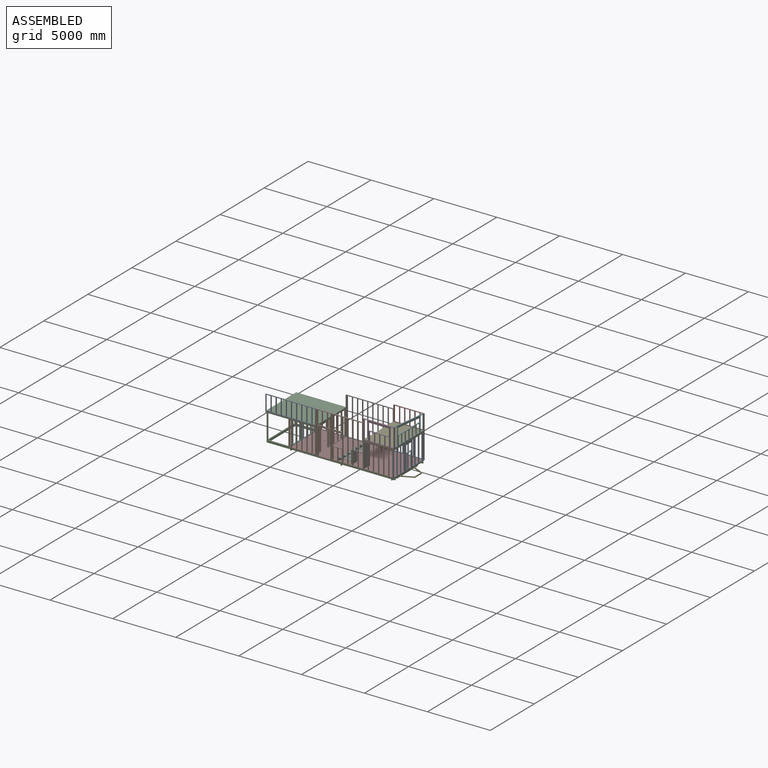
[diagram: assembled view]
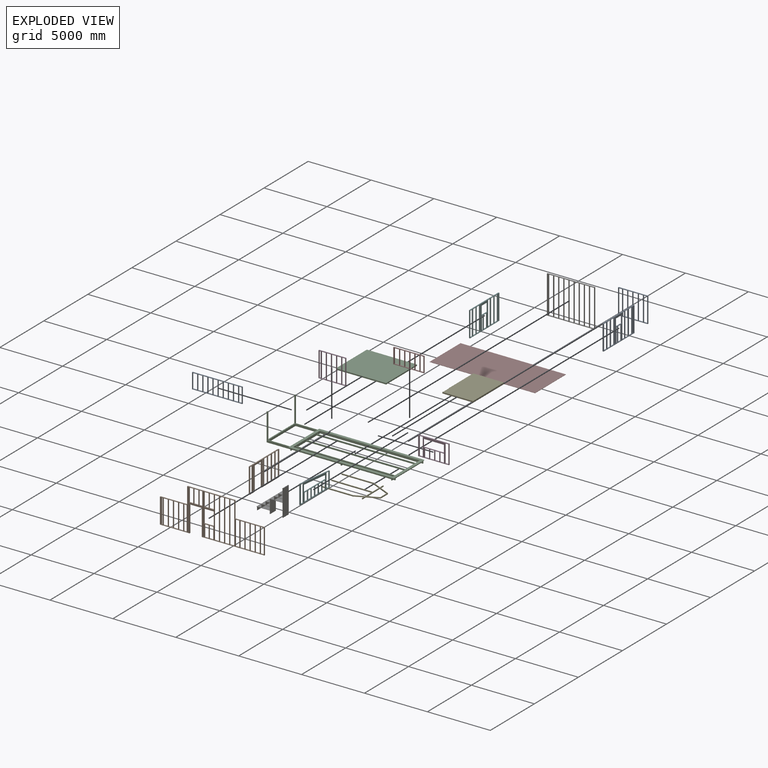
[diagram: exploded view]
GUIDED TOUR — MATED ASSEMBLY (Onshape document c8c15f16987128ea0dcd9a39, AutoMate assembly c8c15f16987128ea0dcd9a39_2c017c27b268a495aacf960a_6606924da4c3053219696071_default)

This assembly has 17 components, labeled P0..P16 below (a component is one placed occurrence of a part; the same part can appear more than once), held together by 16 mates. A mate is a constraint between two components; its type names the relative motion it leaves free:
  FASTENED — locks the two components together rigidly (no relative motion).
Axis/direction vectors are unit vectors and 'through' points are millimeter coordinates, both in the assembly's world frame.

MATES
  1. FASTENED "Fastened 14": P16 <-> P2, direction (1.000, 0.000, 0.000) through (-7276.64, 3408.06, 1241.33) mm
  2. FASTENED "Fastened 12": P4 <-> P14, direction (0.000, 1.000, 0.000) through (-1472.74, 3827.16, 1241.33) mm
  3. FASTENED "Fastened 3": P8 <-> P7, direction (0.000, -1.000, 0.000) through (940.26, 5160.66, -866.87) mm
  4. FASTENED "Fastened 7": P4 <-> P11, direction (1.000, 0.000, 0.000) through (-278.94, 3408.06, 1241.33) mm
  5. FASTENED "Fastened 8": P9 <-> P1, direction (1.000, 0.000, 0.000) through (-5282.74, 3496.96, 1139.73) mm
  6. FASTENED "Fastened 1": P12 <-> P10, direction (0.000, -1.000, 0.000) through (787.86, 5160.66, -1076.42) mm
  7. FASTENED "Fastened 13": P0 <-> P8, direction (0.000, 0.000, -1.000) through (851.36, 6913.26, 136.43) mm
  8. FASTENED "Fastened 11": P4 <-> P13, direction (0.000, -1.000, 0.000) through (940.26, 5160.66, 1241.33) mm
  9. FASTENED "Fastened 15": P5 <-> P3, direction (0.000, 0.000, -1.000) through (-7441.74, 6824.36, 136.43) mm
  10. FASTENED "Fastened 16": P6 <-> P0, direction (0.000, 1.000, 0.000) through (-1498.14, 6868.81, -866.87) mm
  11. FASTENED "Fastened 2": P7 <-> P10, direction (0.000, -1.000, 0.000) through (711.66, 5160.66, -885.92) mm
  12. FASTENED "Fastened 10": P4 <-> P15, direction (1.000, 0.000, 0.000) through (-278.94, 6913.26, 1241.33) mm
  13. FASTENED "Fastened 9": P2 <-> P9, direction (0.000, 1.000, 0.000) through (-5282.74, 5160.66, 1139.73) mm
  14. FASTENED "Fastened 5": P5 <-> P7, direction (0.000, 1.000, 0.000) through (-7441.74, 5160.66, -866.87) mm
  15. FASTENED "Fastened 4": P1 <-> P8, direction (0.000, 0.000, 1.000) through (851.36, 3408.06, 136.43) mm
  16. FASTENED "Fastened 6": P4 <-> P8, direction (0.000, -1.000, 0.000) through (940.26, 5160.66, 1139.73) mm

ASSEMBLY ORDER
  1. P10 — the base component [order verified]
  2. P7 [order verified]
  3. P3 [order verified]
  4. P9 [order verified]
  5. P14 [order verified]
  6. P5 [order verified]
  7. P4 [order verified]
  8. P2 [order verified]
  9. P1 [order verified]
  10. P12 [order verified]
  11. P16 [order verified]
  12. P6 [order verified]
  13. P13 [order verified]
  14. P11 [order verified]
  15. P15 [order verified]
  16. P8 [order verified]
  17. P0 [order verified]
Order-tag legend:
  [order verified] — this step's position reverses a verified removal order: the component was checked to insert without passing through the ones already placed.

Of the 17 components, 13 carry the full construction recipe — the FeatureScript program that regenerates the part's solid from scratch; the rest are supplied as boundary geometry only.
Because this assembly has more than 12 components, the tour below covers the 12 most significant ones individually (every recipe-attached component first, then the largest by part volume), in assembly order; the remaining 5 are summarized together in a grouped section at the end.
Each toured component is shown spotlighted twice — in the assembled view, then in the exploded view, where a leader line traces a displaced component back to its assembled socket (saturated green if recipe-attached, orange if geometry-only; every other component desaturated gray) — followed by its recipe or geometry summary and the mates that hold it.
NOTE — document 2 of 3 of this assembly tour. The two overview renders and the header above are repeated from document 1; the component sections below continue where the previous document stopped.
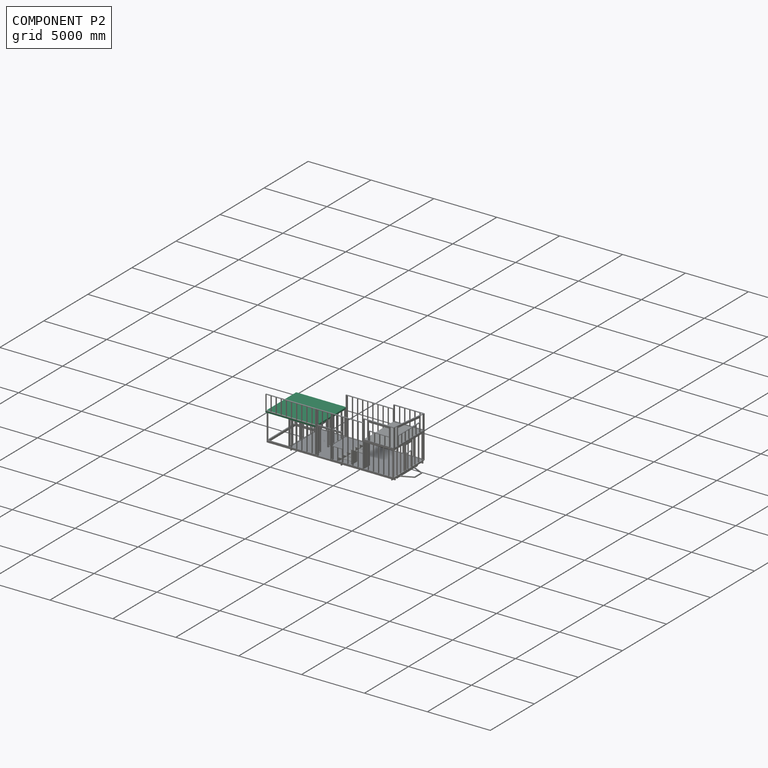
[diagram: component P2 — assembled]
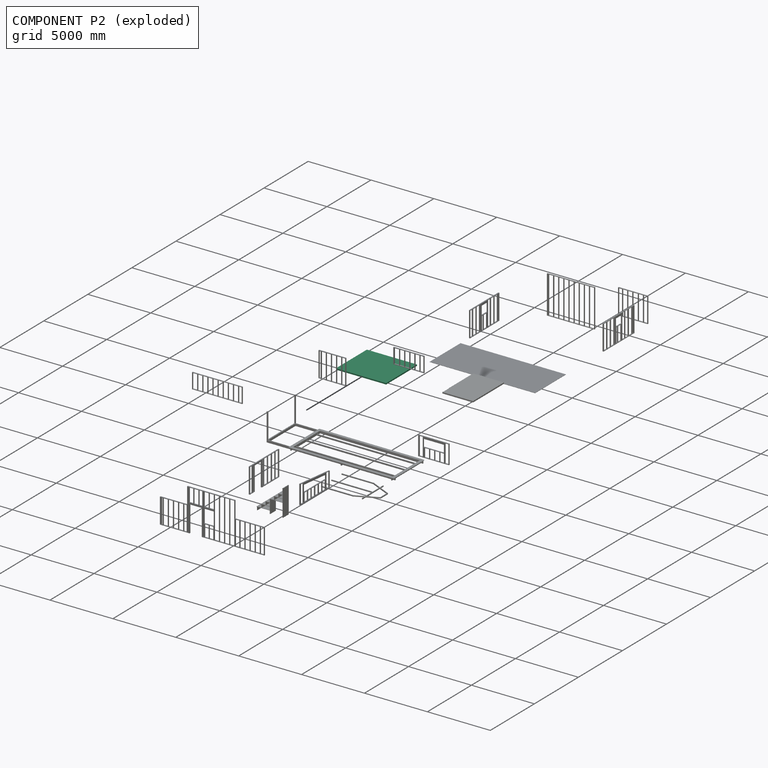
[diagram: component P2 — exploded]
COMPONENT P2 — recipe-attached (CADFS 00191167, mesh-verified: the recipe's output STEP matches this component's geometry to below the mesh-comparison resolution (tessellation chordal tolerance ~7.97 mm)).
Held by: FASTENED mate "Fastened 14" to P16; FASTENED mate "Fastened 9" to P9.
Construction recipe (FeatureScript — the CAD program that rebuilds this solid; sketch coordinates are in the units given by the * unit suffixes, e.g. mm):

FeatureScript 2066;
import(path : "onshape/std/geometry.fs", version : "2066.0");
import(path : "onshape/std/common.fs", version : "2066.0");
const mm = millimeter;
const VERTEX = EntityType.VERTEX;
const EDGE = EntityType.EDGE;
const FACE = EntityType.FACE;
const BODY = EntityType.BODY;
function v(x, y){return vector(x, y);}
function OD(order){return orderDisambiguation(order);}
function OSD(set){return originalSetDisambiguation(set);}
function TD(topology){return topologyDisambiguation(topology);}
function TDD(query){return trueDependencyDisambiguation(query);}
function sQuery(a, b, c) {return sketchEntityQuery(a, b, c);}

annotation { "Feature Type Name" : "Feature", "Feature Type Description" : "" }
export const myFeature = defineFeature(function(context is Context, id is Id, definition is map)
    precondition{}
    {
        {
            var Q0;
            Q0=qCreatedBy(makeId("Top.planeOp"),FACE);
            var sketch = newSketch(context, id + "F0", { "sketchPlane" : qUnion([Q0])});
            skLineSegment(sketch, "E0.bottom", {"start": v(1752.6, -44.45) * mm, "end": v(-1752.6, -44.45) * mm});
            skLineSegment(sketch, "E0.top", {"start": v(1752.6, 44.45) * mm, "end": v(-1752.6, 44.45) * mm});
            skLineSegment(sketch, "E0.left", {"start": v(1752.6, -44.45) * mm, "end": v(1752.6, 44.45) * mm});
            skLineSegment(sketch, "E0.right", {"start": v(-1752.6, -44.45) * mm, "end": v(-1752.6, 44.45) * mm});
            skPoint(sketch, "E0.middle", {"position": v(0, 0) * mm});
            skSolve(sketch);
        }
        {
            var Q0;
            Q0 = qSketchRegion(id + "F0", true);
            extrude(context, id + "F1", {"entities" : qUnion([Q0]), "depth" : 38.1 * mm});
        }
        {
            var Q0;
            Q0=makeQuery(id+"F1.opExtrude","CAP_FACE",FACE,{"disambiguationData":[OSD([sQuery(id+"F0.wireOp",EDGE,"E0.bottom"),sQuery(id+"F0.wireOp",EDGE,"E0.top"),sQuery(id+"F0.wireOp",EDGE,"E0.left"),sQuery(id+"F0.wireOp",EDGE,"E0.right")])],"isStart":false});
            var sketch = newSketch(context, id + "F2", { "sketchPlane" : qUnion([Q0])});
            skLineSegment(sketch, "E1.bottom", {"start": v(1752.6, 44.45) * mm, "end": v(1714.5, 44.45) * mm});
            skLineSegment(sketch, "E1.top", {"start": v(1752.6, -44.45) * mm, "end": v(1714.5, -44.45) * mm});
            skLineSegment(sketch, "E1.left", {"start": v(1752.6, 44.45) * mm, "end": v(1752.6, -44.45) * mm});
            skLineSegment(sketch, "E1.right", {"start": v(1714.5, 44.45) * mm, "end": v(1714.5, -44.45) * mm});
            skLineSegment(sketch, "E2.bottom", {"start": v(1435.1, 44.45) * mm, "end": v(1397, 44.45) * mm});
            skLineSegment(sketch, "E2.top", {"start": v(1435.1, -44.45) * mm, "end": v(1397, -44.45) * mm});
            skLineSegment(sketch, "E2.left", {"start": v(1435.1, 44.45) * mm, "end": v(1435.1, -44.45) * mm});
            skLineSegment(sketch, "E2.right", {"start": v(1397, 44.45) * mm, "end": v(1397, -44.45) * mm});
            skLineSegment(sketch, "E3.bottom", {"start": v(1028.7, 44.45) * mm, "end": v(990.6, 44.45) * mm});
            skLineSegment(sketch, "E3.top", {"start": v(1028.7, -44.45) * mm, "end": v(990.6, -44.45) * mm});
            skLineSegment(sketch, "E3.left", {"start": v(1028.7, 44.45) * mm, "end": v(1028.7, -44.45) * mm});
            skLineSegment(sketch, "E3.right", {"start": v(990.6, 44.45) * mm, "end": v(990.6, -44.45) * mm});
            skLineSegment(sketch, "E4.bottom", {"start": v(622.3, 44.45) * mm, "end": v(584.2, 44.45) * mm});
            skLineSegment(sketch, "E4.top", {"start": v(622.3, -44.45) * mm, "end": v(584.2, -44.45) * mm});
            skLineSegment(sketch, "E4.left", {"start": v(622.3, 44.45) * mm, "end": v(622.3, -44.45) * mm});
            skLineSegment(sketch, "E4.right", {"start": v(584.2, 44.45) * mm, "end": v(584.2, -44.45) * mm});
            skLineSegment(sketch, "E5.bottom", {"start": v(215.9, 44.45) * mm, "end": v(177.8, 44.45) * mm});
            skLineSegment(sketch, "E5.top", {"start": v(215.9, -44.45) * mm, "end": v(177.8, -44.45) * mm});
            skLineSegment(sketch, "E5.left", {"start": v(215.9, 44.45) * mm, "end": v(215.9, -44.45) * mm});
            skLineSegment(sketch, "E5.right", {"start": v(177.8, 44.45) * mm, "end": v(177.8, -44.45) * mm});
            skLineSegment(sketch, "E6.bottom", {"start": v(-190.5, 44.45) * mm, "end": v(-228.6, 44.45) * mm});
            skLineSegment(sketch, "E6.top", {"start": v(-190.5, -44.45) * mm, "end": v(-228.6, -44.45) * mm});
            skLineSegment(sketch, "E6.left", {"start": v(-190.5, 44.45) * mm, "end": v(-190.5, -44.45) * mm});
            skLineSegment(sketch, "E6.right", {"start": v(-228.6, 44.45) * mm, "end": v(-228.6, -44.45) * mm});
            skLineSegment(sketch, "E7.bottom", {"start": v(-596.9, 44.45) * mm, "end": v(-635, 44.45) * mm});
            skLineSegment(sketch, "E7.top", {"start": v(-596.9, -44.45) * mm, "end": v(-635, -44.45) * mm});
            skLineSegment(sketch, "E7.left", {"start": v(-596.9, 44.45) * mm, "end": v(-596.9, -44.45) * mm});
            skLineSegment(sketch, "E7.right", {"start": v(-635, 44.45) * mm, "end": v(-635, -44.45) * mm});
            skLineSegment(sketch, "E8.bottom", {"start": v(-1003.3, 44.45) * mm, "end": v(-1041.4, 44.45) * mm});
            skLineSegment(sketch, "E8.top", {"start": v(-1003.3, -44.45) * mm, "end": v(-1041.4, -44.45) * mm});
            skLineSegment(sketch, "E8.left", {"start": v(-1003.3, 44.45) * mm, "end": v(-1003.3, -44.45) * mm});
            skLineSegment(sketch, "E8.right", {"start": v(-1041.4, 44.45) * mm, "end": v(-1041.4, -44.45) * mm});
            skLineSegment(sketch, "E9.bottom", {"start": v(-1752.6, 44.45) * mm, "end": v(-1714.5, 44.45) * mm});
            skLineSegment(sketch, "E9.top", {"start": v(-1752.6, -44.45) * mm, "end": v(-1714.5, -44.45) * mm});
            skLineSegment(sketch, "E9.left", {"start": v(-1752.6, 44.45) * mm, "end": v(-1752.6, -44.45) * mm});
            skLineSegment(sketch, "E9.right", {"start": v(-1714.5, 44.45) * mm, "end": v(-1714.5, -44.45) * mm});
            skLineSegment(sketch, "E10.bottom", {"start": v(-1447.8, 44.45) * mm, "end": v(-1409.7, 44.45) * mm});
            skLineSegment(sketch, "E10.top", {"start": v(-1447.8, -44.45) * mm, "end": v(-1409.7, -44.45) * mm});
            skLineSegment(sketch, "E10.left", {"start": v(-1447.8, 44.45) * mm, "end": v(-1447.8, -44.45) * mm});
            skLineSegment(sketch, "E10.right", {"start": v(-1409.7, 44.45) * mm, "end": v(-1409.7, -44.45) * mm});
            skSolve(sketch);
        }
        {
            var Q0;
            Q0 = qSketchRegion(id + "F2", true);
            extrude(context, id + "F3", {"entities" : qUnion([Q0]), "operationType" : NewBodyOperationType.ADD, "depth" : 3759.2 * mm});
        }
        {
            var Q0;
            Q0=makeQuery(id+"F1.opExtrude","CAP_FACE",FACE,{"disambiguationData":[OSD([sQuery(id+"F0.wireOp",EDGE,"E0.bottom"),sQuery(id+"F0.wireOp",EDGE,"E0.top"),sQuery(id+"F0.wireOp",EDGE,"E0.left"),sQuery(id+"F0.wireOp",EDGE,"E0.right")])],"isStart":true});
            var sketch = newSketch(context, id + "F4", { "sketchPlane" : qUnion([Q0])});
            skLineSegment(sketch, "E11.bottom", {"start": v(1752.6, -44.45) * mm, "end": v(-1752.6, -44.45) * mm});
            skLineSegment(sketch, "E11.top", {"start": v(1752.6, 44.45) * mm, "end": v(-1752.6, 44.45) * mm});
            skLineSegment(sketch, "E11.left", {"start": v(1752.6, -44.45) * mm, "end": v(1752.6, 44.45) * mm});
            skLineSegment(sketch, "E11.right", {"start": v(-1752.6, -44.45) * mm, "end": v(-1752.6, 44.45) * mm});
            skSolve(sketch);
        }
        {
            var Q0;
            Q0 = qSketchRegion(id + "F4", true);
            extrude(context, id + "F5", {"entities" : qUnion([Q0]), "operationType" : NewBodyOperationType.ADD, "depth" : 76.2 * mm});
        }
        {
            var Q0;
            Q0=makeQuery(id+"F5.boolean.opBoolean","MERGE",FACE,{"derivedFrom":[makeQuery(id+"F3.boolean.opBoolean","MERGE",FACE,{"derivedFrom":[makeQuery(id+"F1.opExtrude","SWEPT_FACE",FACE,{"disambiguationData":[OSD([sQuery(id+"F0.wireOp",EDGE,"E0.top")])]}),makeQuery(id+"F3.opExtrude","SWEPT_FACE",FACE,{"disambiguationData":[OSD([sQuery(id+"F2.wireOp",EDGE,"E1.bottom")])]}),makeQuery(id+"F3.opExtrude","SWEPT_FACE",FACE,{"disambiguationData":[OSD([sQuery(id+"F2.wireOp",EDGE,"E2.bottom")])]}),makeQuery(id+"F3.opExtrude","SWEPT_FACE",FACE,{"disambiguationData":[OSD([sQuery(id+"F2.wireOp",EDGE,"E3.bottom")])]}),makeQuery(id+"F3.opExtrude","SWEPT_FACE",FACE,{"disambiguationData":[OSD([sQuery(id+"F2.wireOp",EDGE,"E4.bottom")])]}),makeQuery(id+"F3.opExtrude","SWEPT_FACE",FACE,{"disambiguationData":[OSD([sQuery(id+"F2.wireOp",EDGE,"E5.bottom")])]}),makeQuery(id+"F3.opExtrude","SWEPT_FACE",FACE,{"disambiguationData":[OSD([sQuery(id+"F2.wireOp",EDGE,"E6.bottom")])]}),makeQuery(id+"F3.opExtrude","SWEPT_FACE",FACE,{"disambiguationData":[OSD([sQuery(id+"F2.wireOp",EDGE,"E7.bottom")])]}),makeQuery(id+"F3.opExtrude","SWEPT_FACE",FACE,{"disambiguationData":[OSD([sQuery(id+"F2.wireOp",EDGE,"E8.bottom")])]}),makeQuery(id+"F3.opExtrude","SWEPT_FACE",FACE,{"disambiguationData":[OSD([sQuery(id+"F2.wireOp",EDGE,"E9.bottom")])]}),makeQuery(id+"F3.opExtrude","SWEPT_FACE",FACE,{"disambiguationData":[OSD([sQuery(id+"F2.wireOp",EDGE,"E10.bottom")])]})]}),makeQuery(id+"F5.opExtrude","SWEPT_FACE",FACE,{"disambiguationData":[OSD([sQuery(id+"F4.wireOp",EDGE,"E11.bottom")])]})]});
            var sketch = newSketch(context, id + "F6", { "sketchPlane" : qUnion([Q0])});
            skLineSegment(sketch, "E12.bottom", {"start": v(1752.6, 3797.3) * mm, "end": v(-1752.6, 3797.3) * mm});
            skLineSegment(sketch, "E12.top", {"start": v(1752.6, 3835.4) * mm, "end": v(-1752.6, 3835.4) * mm});
            skLineSegment(sketch, "E12.left", {"start": v(1752.6, 3797.3) * mm, "end": v(1752.6, 3835.4) * mm});
            skLineSegment(sketch, "E12.right", {"start": v(-1752.6, 3797.3) * mm, "end": v(-1752.6, 3835.4) * mm});
            skSolve(sketch);
        }
        {
            var Q0;
            Q0 = qSketchRegion(id + "F6", true);
            extrude(context, id + "F7", {"entities" : qUnion([Q0]), "operationType" : NewBodyOperationType.ADD, "oppositeDirection" : true, "depth" : 88.9 * mm});
        }
        {
            var Q0;
            Q0=makeQuery(id+"F7.opExtrude","SWEPT_FACE",FACE,{"disambiguationData":[OSD([sQuery(id+"F6.wireOp",EDGE,"E12.top")])]});
            var sketch = newSketch(context, id + "F8", { "sketchPlane" : qUnion([Q0])});
            skLineSegment(sketch, "E13.bottom", {"start": v(-1752.6, -44.45) * mm, "end": v(1752.6, -44.45) * mm});
            skLineSegment(sketch, "E13.top", {"start": v(-1752.6, 44.45) * mm, "end": v(1752.6, 44.45) * mm});
            skLineSegment(sketch, "E13.left", {"start": v(-1752.6, -44.45) * mm, "end": v(-1752.6, 44.45) * mm});
            skLineSegment(sketch, "E13.right", {"start": v(1752.6, -44.45) * mm, "end": v(1752.6, 44.45) * mm});
            skSolve(sketch);
        }
        {
            var Q0;
            Q0 = qSketchRegion(id + "F8", true);
            extrude(context, id + "F9", {"entities" : qUnion([Q0]), "operationType" : NewBodyOperationType.ADD, "depth" : 76.2 * mm});
        }
        {
            var Q0;
            Q0=makeQuery(id+"F9.boolean.opBoolean","MERGE",FACE,{"derivedFrom":[makeQuery(id+"F7.boolean.opBoolean","MERGE",FACE,{"derivedFrom":[makeQuery(id+"F5.boolean.opBoolean","MERGE",FACE,{"derivedFrom":[makeQuery(id+"F3.boolean.opBoolean","MERGE",FACE,{"derivedFrom":[makeQuery(id+"F1.opExtrude","SWEPT_FACE",FACE,{"disambiguationData":[OSD([sQuery(id+"F0.wireOp",EDGE,"E0.bottom")])]}),makeQuery(id+"F3.opExtrude","SWEPT_FACE",FACE,{"disambiguationData":[OSD([sQuery(id+"F2.wireOp",EDGE,"E1.top")])]}),makeQuery(id+"F3.opExtrude","SWEPT_FACE",FACE,{"disambiguationData":[OSD([sQuery(id+"F2.wireOp",EDGE,"E2.top")])]}),makeQuery(id+"F3.opExtrude","SWEPT_FACE",FACE,{"disambiguationData":[OSD([sQuery(id+"F2.wireOp",EDGE,"E3.top")])]}),makeQuery(id+"F3.opExtrude","SWEPT_FACE",FACE,{"disambiguationData":[OSD([sQuery(id+"F2.wireOp",EDGE,"E4.top")])]}),makeQuery(id+"F3.opExtrude","SWEPT_FACE",FACE,{"disambiguationData":[OSD([sQuery(id+"F2.wireOp",EDGE,"E5.top")])]}),makeQuery(id+"F3.opExtrude","SWEPT_FACE",FACE,{"disambiguationData":[OSD([sQuery(id+"F2.wireOp",EDGE,"E6.top")])]}),makeQuery(id+"F3.opExtrude","SWEPT_FACE",FACE,{"disambiguationData":[OSD([sQuery(id+"F2.wireOp",EDGE,"E7.top")])]}),makeQuery(id+"F3.opExtrude","SWEPT_FACE",FACE,{"disambiguationData":[OSD([sQuery(id+"F2.wireOp",EDGE,"E8.top")])]}),makeQuery(id+"F3.opExtrude","SWEPT_FACE",FACE,{"disambiguationData":[OSD([sQuery(id+"F2.wireOp",EDGE,"E9.top")])]}),makeQuery(id+"F3.opExtrude","SWEPT_FACE",FACE,{"disambiguationData":[OSD([sQuery(id+"F2.wireOp",EDGE,"E10.top")])]})]}),makeQuery(id+"F5.opExtrude","SWEPT_FACE",FACE,{"disambiguationData":[OSD([sQuery(id+"F4.wireOp",EDGE,"E11.top")])]})]}),makeQuery(id+"F7.opExtrude","CAP_FACE",FACE,{"disambiguationData":[OSD([sQuery(id+"F6.wireOp",EDGE,"E12.bottom"),sQuery(id+"F6.wireOp",EDGE,"E12.top"),sQuery(id+"F6.wireOp",EDGE,"E12.left"),sQuery(id+"F6.wireOp",EDGE,"E12.right")])],"isStart":false})]}),makeQuery(id+"F9.opExtrude","SWEPT_FACE",FACE,{"disambiguationData":[OSD([sQuery(id+"F8.wireOp",EDGE,"E13.bottom")])]})]});
            var sketch = newSketch(context, id + "F10", { "sketchPlane" : qUnion([Q0])});
            skLineSegment(sketch, "E14.bottom", {"start": v(1752.6, 1993.9) * mm, "end": v(-1752.6, 1993.9) * mm});
            skLineSegment(sketch, "E14.top", {"start": v(1752.6, 2082.8) * mm, "end": v(-1752.6, 2082.8) * mm});
            skLineSegment(sketch, "E14.left", {"start": v(1752.6, 1993.9) * mm, "end": v(1752.6, 2082.8) * mm});
            skLineSegment(sketch, "E14.right", {"start": v(-1752.6, 1993.9) * mm, "end": v(-1752.6, 2082.8) * mm});
            skSolve(sketch);
        }
        {
            var Q0;
            Q0 = qSketchRegion(id + "F10", true);
            extrude(context, id + "F11", {"entities" : qUnion([Q0]), "operationType" : NewBodyOperationType.ADD, "oppositeDirection" : true, "depth" : 88.9 * mm});
        }
        {
            var Q0;
            Q0=makeQuery(id+"F11.boolean.opBoolean","MERGE",FACE,{"derivedFrom":[makeQuery(id+"F9.boolean.opBoolean","MERGE",FACE,{"derivedFrom":[makeQuery(id+"F7.boolean.opBoolean","MERGE",FACE,{"derivedFrom":[makeQuery(id+"F5.boolean.opBoolean","MERGE",FACE,{"derivedFrom":[makeQuery(id+"F3.boolean.opBoolean","MERGE",FACE,{"derivedFrom":[makeQuery(id+"F1.opExtrude","SWEPT_FACE",FACE,{"disambiguationData":[OSD([sQuery(id+"F0.wireOp",EDGE,"E0.top")])]}),makeQuery(id+"F3.opExtrude","SWEPT_FACE",FACE,{"disambiguationData":[OSD([sQuery(id+"F2.wireOp",EDGE,"E1.bottom")])]}),makeQuery(id+"F3.opExtrude","SWEPT_FACE",FACE,{"disambiguationData":[OSD([sQuery(id+"F2.wireOp",EDGE,"E2.bottom")])]}),makeQuery(id+"F3.opExtrude","SWEPT_FACE",FACE,{"disambiguationData":[OSD([sQuery(id+"F2.wireOp",EDGE,"E3.bottom")])]}),makeQuery(id+"F3.opExtrude","SWEPT_FACE",FACE,{"disambiguationData":[OSD([sQuery(id+"F2.wireOp",EDGE,"E4.bottom")])]}),makeQuery(id+"F3.opExtrude","SWEPT_FACE",FACE,{"disambiguationData":[OSD([sQuery(id+"F2.wireOp",EDGE,"E5.bottom")])]}),makeQuery(id+"F3.opExtrude","SWEPT_FACE",FACE,{"disambiguationData":[OSD([sQuery(id+"F2.wireOp",EDGE,"E6.bottom")])]}),makeQuery(id+"F3.opExtrude","SWEPT_FACE",FACE,{"disambiguationData":[OSD([sQuery(id+"F2.wireOp",EDGE,"E7.bottom")])]}),makeQuery(id+"F3.opExtrude","SWEPT_FACE",FACE,{"disambiguationData":[OSD([sQuery(id+"F2.wireOp",EDGE,"E8.bottom")])]}),makeQuery(id+"F3.opExtrude","SWEPT_FACE",FACE,{"disambiguationData":[OSD([sQuery(id+"F2.wireOp",EDGE,"E9.bottom")])]}),makeQuery(id+"F3.opExtrude","SWEPT_FACE",FACE,{"disambiguationData":[OSD([sQuery(id+"F2.wireOp",EDGE,"E10.bottom")])]})]}),makeQuery(id+"F5.opExtrude","SWEPT_FACE",FACE,{"disambiguationData":[OSD([sQuery(id+"F4.wireOp",EDGE,"E11.bottom")])]})]}),makeQuery(id+"F7.opExtrude","CAP_FACE",FACE,{"disambiguationData":[OSD([sQuery(id+"F6.wireOp",EDGE,"E12.bottom"),sQuery(id+"F6.wireOp",EDGE,"E12.top"),sQuery(id+"F6.wireOp",EDGE,"E12.left"),sQuery(id+"F6.wireOp",EDGE,"E12.right")])],"isStart":true})]}),makeQuery(id+"F9.opExtrude","SWEPT_FACE",FACE,{"disambiguationData":[OSD([sQuery(id+"F8.wireOp",EDGE,"E13.top")])]})]}),makeQuery(id+"F11.opExtrude","CAP_FACE",FACE,{"disambiguationData":[OSD([sQuery(id+"F10.wireOp",EDGE,"E14.bottom"),sQuery(id+"F10.wireOp",EDGE,"E14.top"),sQuery(id+"F10.wireOp",EDGE,"E14.left"),sQuery(id+"F10.wireOp",EDGE,"E14.right")])],"isStart":false})]});
            var sketch = newSketch(context, id + "F12", { "sketchPlane" : qUnion([Q0])});
            skLineSegment(sketch, "E15.bottom", {"start": v(-1752.6, 3911.6) * mm, "end": v(1752.6, 3911.6) * mm});
            skLineSegment(sketch, "E15.top", {"start": v(-1752.6, -76.2) * mm, "end": v(1752.6, -76.2) * mm});
            skLineSegment(sketch, "E15.left", {"start": v(-1752.6, 3911.6) * mm, "end": v(-1752.6, -76.2) * mm});
            skLineSegment(sketch, "E15.right", {"start": v(1752.6, 3911.6) * mm, "end": v(1752.6, -76.2) * mm});
            skSolve(sketch);
        }
        {
            var Q0;
            Q0 = qSketchRegion(id + "F12", true);
            extrude(context, id + "F13", {"entities" : qUnion([Q0]), "operationType" : NewBodyOperationType.ADD, "depth" : 12.7 * mm});
        }
    });
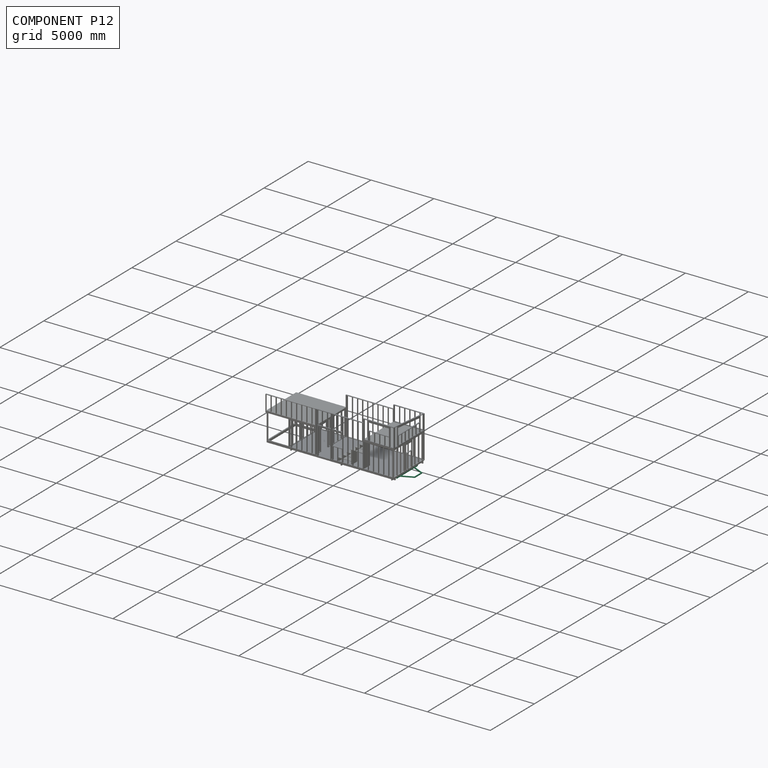
[diagram: component P12 — assembled]
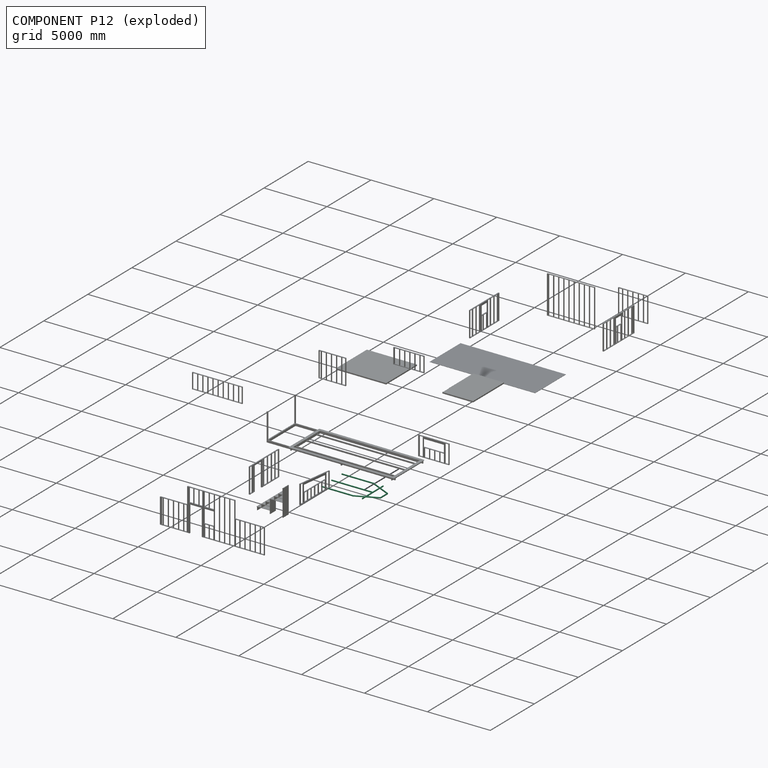
[diagram: component P12 — exploded]
COMPONENT P12 — recipe-attached (CADFS 00191161, mesh-verified: the recipe's output STEP matches this component's geometry to below the mesh-comparison resolution (tessellation chordal tolerance ~7.24 mm)).
Held by: FASTENED mate "Fastened 1" to P10.
Construction recipe (FeatureScript — the CAD program that rebuilds this solid; sketch coordinates are in the units given by the * unit suffixes, e.g. mm):

FeatureScript 2066;
import(path : "onshape/std/geometry.fs", version : "2066.0");
import(path : "onshape/std/common.fs", version : "2066.0");
const mm = millimeter;
const VERTEX = EntityType.VERTEX;
const EDGE = EntityType.EDGE;
const FACE = EntityType.FACE;
const BODY = EntityType.BODY;
function v(x, y){return vector(x, y);}
function OD(order){return orderDisambiguation(order);}
function OSD(set){return originalSetDisambiguation(set);}
function TD(topology){return topologyDisambiguation(topology);}
function TDD(query){return trueDependencyDisambiguation(query);}
function sQuery(a, b, c) {return sketchEntityQuery(a, b, c);}

annotation { "Feature Type Name" : "Feature", "Feature Type Description" : "" }
export const myFeature = defineFeature(function(context is Context, id is Id, definition is map)
    precondition{}
    {
        {
            var Q0;
            Q0=qCreatedBy(makeId("Top.planeOp"),FACE);
            var sketch = newSketch(context, id + "F0", { "sketchPlane" : qUnion([Q0])});
            skLineSegment(sketch, "E0.bottom", {"start": v(-788.63, 2163.82) * mm, "end": v(1751.37, 2163.82) * mm});
            skLineSegment(sketch, "E0.top", {"start": v(-788.63, 2100.32) * mm, "end": v(1751.37, 2100.32) * mm});
            skLineSegment(sketch, "E0.left", {"start": v(-788.63, 2163.82) * mm, "end": v(-788.63, 2100.32) * mm});
            skLineSegment(sketch, "E0.right", {"start": v(1751.37, 2163.82) * mm, "end": v(1751.37, 2100.32) * mm});
            skLineSegment(sketch, "E1.bottom", {"start": v(-788.63, -160.28) * mm, "end": v(1751.37, -160.28) * mm});
            skLineSegment(sketch, "E1.top", {"start": v(-788.63, -223.78) * mm, "end": v(1751.37, -223.78) * mm});
            skLineSegment(sketch, "E1.left", {"start": v(-788.63, -160.28) * mm, "end": v(-788.63, -223.78) * mm});
            skLineSegment(sketch, "E1.right", {"start": v(1751.37, -160.28) * mm, "end": v(1751.37, -223.78) * mm});
            skLineSegment(sketch, "E2.bottom", {"start": v(-788.63, 1001.77) * mm, "end": v(2513.37, 1001.77) * mm});
            skLineSegment(sketch, "E2.top", {"start": v(-788.63, 938.27) * mm, "end": v(2513.37, 938.27) * mm});
            skLineSegment(sketch, "E2.left", {"start": v(-788.63, 1001.77) * mm, "end": v(-788.63, 938.27) * mm});
            skLineSegment(sketch, "E2.right", {"start": v(2513.37, 1001.77) * mm, "end": v(2513.37, 938.27) * mm});
            skLineSegment(sketch, "E3", {"start": v(1751.37, 2163.82) * mm, "end": v(3408.82, 1390.94) * mm});
            skLineSegment(sketch, "E4", {"start": v(1751.37, -223.78) * mm, "end": v(3408.82, 549.1) * mm});
            skLineSegment(sketch, "E5", {"start": v(1737.29, -160.28) * mm, "end": v(3486.82, 655.54) * mm});
            skLineSegment(sketch, "E6", {"start": v(1737.29, 2100.32) * mm, "end": v(3446.29, 1303.4) * mm});
            skLineSegment(sketch, "E7", {"start": v(3408.82, 1390.94) * mm, "end": v(3408.82, 549.1) * mm});
            skLineSegment(sketch, "E8", {"start": v(3345.32, 519.5) * mm, "end": v(3345.32, 1420.55) * mm});
            skLineSegment(sketch, "E9.bottom", {"start": v(2513.37, 2163.82) * mm, "end": v(2455.7, 2163.82) * mm});
            skLineSegment(sketch, "E9.top", {"start": v(2513.37, -223.78) * mm, "end": v(2455.7, -223.78) * mm});
            skLineSegment(sketch, "E9.left", {"start": v(2513.37, 2163.82) * mm, "end": v(2513.37, -223.78) * mm});
            skLineSegment(sketch, "E9.right", {"start": v(2455.7, 2163.82) * mm, "end": v(2455.7, -223.78) * mm});
            skSolve(sketch);
        }
        {
            var Q0;
            Q0 = qSketchRegion(id + "F0", true);
            extrude(context, id + "F1", {"entities" : qUnion([Q0]), "depth" : 76.2 * mm});
        }
    });
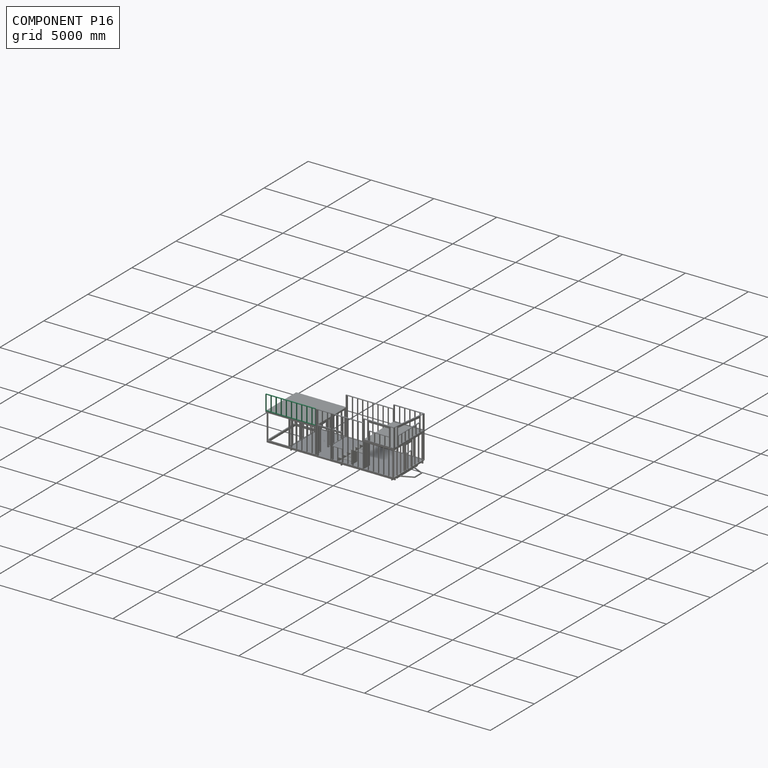
[diagram: component P16 — assembled]
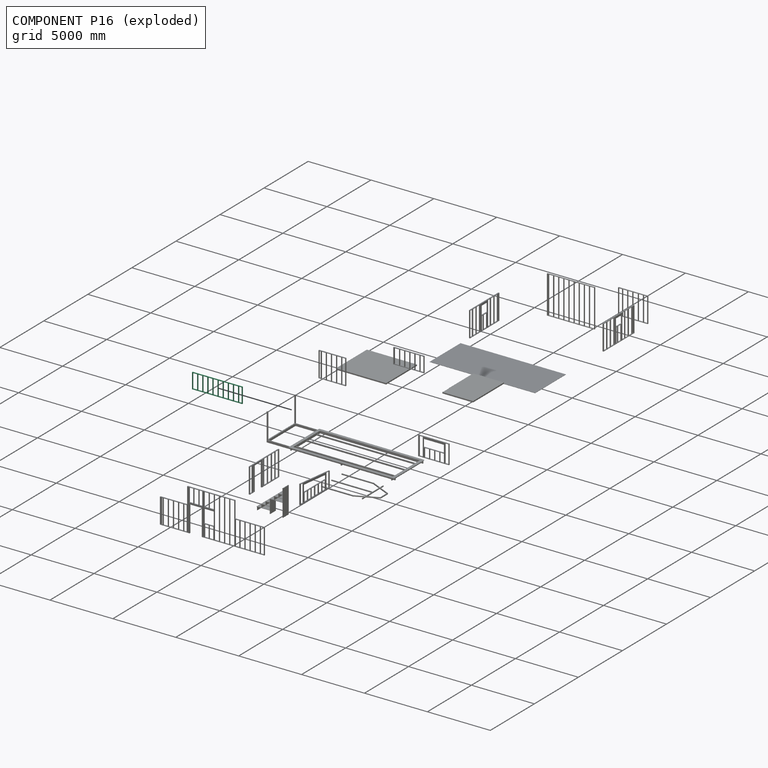
[diagram: component P16 — exploded]
COMPONENT P16 — recipe-attached (CADFS 00191174, mesh-verified: the recipe's output STEP matches this component's geometry to below the mesh-comparison resolution (tessellation chordal tolerance ~6.26 mm)).
Held by: FASTENED mate "Fastened 14" to P2.
Construction recipe (FeatureScript — the CAD program that rebuilds this solid; sketch coordinates are in the units given by the * unit suffixes, e.g. mm):

FeatureScript 2066;
import(path : "onshape/std/geometry.fs", version : "2066.0");
import(path : "onshape/std/common.fs", version : "2066.0");
const mm = millimeter;
const VERTEX = EntityType.VERTEX;
const EDGE = EntityType.EDGE;
const FACE = EntityType.FACE;
const BODY = EntityType.BODY;
function v(x, y){return vector(x, y);}
function OD(order){return orderDisambiguation(order);}
function OSD(set){return originalSetDisambiguation(set);}
function TD(topology){return topologyDisambiguation(topology);}
function TDD(query){return trueDependencyDisambiguation(query);}
function sQuery(a, b, c) {return sketchEntityQuery(a, b, c);}

annotation { "Feature Type Name" : "Feature", "Feature Type Description" : "" }
export const myFeature = defineFeature(function(context is Context, id is Id, definition is map)
    precondition{}
    {
        {
            var Q0;
            Q0=qCreatedBy(makeId("Top.planeOp"),FACE);
            var sketch = newSketch(context, id + "F0", { "sketchPlane" : qUnion([Q0])});
            skLineSegment(sketch, "E0.bottom", {"start": v(1993.9, -44.45) * mm, "end": v(-1993.9, -44.45) * mm});
            skLineSegment(sketch, "E0.top", {"start": v(1993.9, 44.45) * mm, "end": v(-1993.9, 44.45) * mm});
            skLineSegment(sketch, "E0.left", {"start": v(1993.9, -44.45) * mm, "end": v(1993.9, 44.45) * mm});
            skLineSegment(sketch, "E0.right", {"start": v(-1993.9, -44.45) * mm, "end": v(-1993.9, 44.45) * mm});
            skPoint(sketch, "E0.middle", {"position": v(0, 0) * mm});
            skSolve(sketch);
        }
        {
            var Q0;
            Q0 = qSketchRegion(id + "F0", true);
            extrude(context, id + "F1", {"entities" : qUnion([Q0]), "depth" : 38.1 * mm});
        }
        {
            var Q0;
            Q0=makeQuery(id+"F1.opExtrude","CAP_FACE",FACE,{"disambiguationData":[OSD([sQuery(id+"F0.wireOp",EDGE,"E0.bottom"),sQuery(id+"F0.wireOp",EDGE,"E0.top"),sQuery(id+"F0.wireOp",EDGE,"E0.left"),sQuery(id+"F0.wireOp",EDGE,"E0.right")])],"isStart":false});
            var sketch = newSketch(context, id + "F2", { "sketchPlane" : qUnion([Q0])});
            skLineSegment(sketch, "E1.bottom", {"start": v(1993.9, 44.45) * mm, "end": v(1955.8, 44.45) * mm});
            skLineSegment(sketch, "E1.top", {"start": v(1993.9, -44.45) * mm, "end": v(1955.8, -44.45) * mm});
            skLineSegment(sketch, "E1.left", {"start": v(1993.9, 44.45) * mm, "end": v(1993.9, -44.45) * mm});
            skLineSegment(sketch, "E1.right", {"start": v(1955.8, 44.45) * mm, "end": v(1955.8, -44.45) * mm});
            skLineSegment(sketch, "E2.bottom", {"start": v(1587.5, 44.45) * mm, "end": v(1549.4, 44.45) * mm});
            skLineSegment(sketch, "E2.top", {"start": v(1587.5, -44.45) * mm, "end": v(1549.4, -44.45) * mm});
            skLineSegment(sketch, "E2.left", {"start": v(1587.5, 44.45) * mm, "end": v(1587.5, -44.45) * mm});
            skLineSegment(sketch, "E2.right", {"start": v(1549.4, 44.45) * mm, "end": v(1549.4, -44.45) * mm});
            skLineSegment(sketch, "E3.bottom", {"start": v(1181.1, 44.45) * mm, "end": v(1143, 44.45) * mm});
            skLineSegment(sketch, "E3.top", {"start": v(1181.1, -44.45) * mm, "end": v(1143, -44.45) * mm});
            skLineSegment(sketch, "E3.left", {"start": v(1181.1, 44.45) * mm, "end": v(1181.1, -44.45) * mm});
            skLineSegment(sketch, "E3.right", {"start": v(1143, 44.45) * mm, "end": v(1143, -44.45) * mm});
            skLineSegment(sketch, "E4.bottom", {"start": v(774.7, 44.45) * mm, "end": v(736.6, 44.45) * mm});
            skLineSegment(sketch, "E4.top", {"start": v(774.7, -44.45) * mm, "end": v(736.6, -44.45) * mm});
            skLineSegment(sketch, "E4.left", {"start": v(774.7, 44.45) * mm, "end": v(774.7, -44.45) * mm});
            skLineSegment(sketch, "E4.right", {"start": v(736.6, 44.45) * mm, "end": v(736.6, -44.45) * mm});
            skLineSegment(sketch, "E5.bottom", {"start": v(368.3, 44.45) * mm, "end": v(330.2, 44.45) * mm});
            skLineSegment(sketch, "E5.top", {"start": v(368.3, -44.45) * mm, "end": v(330.2, -44.45) * mm});
            skLineSegment(sketch, "E5.left", {"start": v(368.3, 44.45) * mm, "end": v(368.3, -44.45) * mm});
            skLineSegment(sketch, "E5.right", {"start": v(330.2, 44.45) * mm, "end": v(330.2, -44.45) * mm});
            skLineSegment(sketch, "E6.bottom", {"start": v(-38.1, 44.45) * mm, "end": v(-76.2, 44.45) * mm});
            skLineSegment(sketch, "E6.top", {"start": v(-38.1, -44.45) * mm, "end": v(-76.2, -44.45) * mm});
            skLineSegment(sketch, "E6.left", {"start": v(-38.1, 44.45) * mm, "end": v(-38.1, -44.45) * mm});
            skLineSegment(sketch, "E6.right", {"start": v(-76.2, 44.45) * mm, "end": v(-76.2, -44.45) * mm});
            skLineSegment(sketch, "E7.bottom", {"start": v(-444.5, 44.45) * mm, "end": v(-482.6, 44.45) * mm});
            skLineSegment(sketch, "E7.top", {"start": v(-444.5, -44.45) * mm, "end": v(-482.6, -44.45) * mm});
            skLineSegment(sketch, "E7.left", {"start": v(-444.5, 44.45) * mm, "end": v(-444.5, -44.45) * mm});
            skLineSegment(sketch, "E7.right", {"start": v(-482.6, 44.45) * mm, "end": v(-482.6, -44.45) * mm});
            skLineSegment(sketch, "E8.bottom", {"start": v(-850.9, 44.45) * mm, "end": v(-889, 44.45) * mm});
            skLineSegment(sketch, "E8.top", {"start": v(-850.9, -44.45) * mm, "end": v(-889, -44.45) * mm});
            skLineSegment(sketch, "E8.left", {"start": v(-850.9, 44.45) * mm, "end": v(-850.9, -44.45) * mm});
            skLineSegment(sketch, "E8.right", {"start": v(-889, 44.45) * mm, "end": v(-889, -44.45) * mm});
            skLineSegment(sketch, "E9.bottom", {"start": v(-1257.3, 44.45) * mm, "end": v(-1295.4, 44.45) * mm});
            skLineSegment(sketch, "E9.top", {"start": v(-1257.3, -44.45) * mm, "end": v(-1295.4, -44.45) * mm});
            skLineSegment(sketch, "E9.left", {"start": v(-1257.3, 44.45) * mm, "end": v(-1257.3, -44.45) * mm});
            skLineSegment(sketch, "E9.right", {"start": v(-1295.4, 44.45) * mm, "end": v(-1295.4, -44.45) * mm});
            skLineSegment(sketch, "E10.bottom", {"start": v(-1993.9, 44.45) * mm, "end": v(-1955.8, 44.45) * mm});
            skLineSegment(sketch, "E10.top", {"start": v(-1993.9, -44.45) * mm, "end": v(-1955.8, -44.45) * mm});
            skLineSegment(sketch, "E10.left", {"start": v(-1993.9, 44.45) * mm, "end": v(-1993.9, -44.45) * mm});
            skLineSegment(sketch, "E10.right", {"start": v(-1955.8, 44.45) * mm, "end": v(-1955.8, -44.45) * mm});
            skLineSegment(sketch, "E11.bottom", {"start": v(-1701.8, 44.45) * mm, "end": v(-1663.7, 44.45) * mm});
            skLineSegment(sketch, "E11.top", {"start": v(-1701.8, -44.45) * mm, "end": v(-1663.7, -44.45) * mm});
            skLineSegment(sketch, "E11.left", {"start": v(-1701.8, 44.45) * mm, "end": v(-1701.8, -44.45) * mm});
            skLineSegment(sketch, "E11.right", {"start": v(-1663.7, 44.45) * mm, "end": v(-1663.7, -44.45) * mm});
            skSolve(sketch);
        }
        {
            var Q0;
            Q0 = qSketchRegion(id + "F2", true);
            extrude(context, id + "F3", {"entities" : qUnion([Q0]), "operationType" : NewBodyOperationType.ADD, "depth" : 1143 * mm});
        }
        {
            var Q0;
            Q0=makeQuery(id+"F3.boolean.opBoolean","MERGE",FACE,{"derivedFrom":[makeQuery(id+"F1.opExtrude","SWEPT_FACE",FACE,{"disambiguationData":[OSD([sQuery(id+"F0.wireOp",EDGE,"E0.bottom")])]}),makeQuery(id+"F3.opExtrude","SWEPT_FACE",FACE,{"disambiguationData":[OSD([sQuery(id+"F2.wireOp",EDGE,"E1.top")])]}),makeQuery(id+"F3.opExtrude","SWEPT_FACE",FACE,{"disambiguationData":[OSD([sQuery(id+"F2.wireOp",EDGE,"E2.top")])]}),makeQuery(id+"F3.opExtrude","SWEPT_FACE",FACE,{"disambiguationData":[OSD([sQuery(id+"F2.wireOp",EDGE,"E3.top")])]}),makeQuery(id+"F3.opExtrude","SWEPT_FACE",FACE,{"disambiguationData":[OSD([sQuery(id+"F2.wireOp",EDGE,"E4.top")])]}),makeQuery(id+"F3.opExtrude","SWEPT_FACE",FACE,{"disambiguationData":[OSD([sQuery(id+"F2.wireOp",EDGE,"E5.top")])]}),makeQuery(id+"F3.opExtrude","SWEPT_FACE",FACE,{"disambiguationData":[OSD([sQuery(id+"F2.wireOp",EDGE,"E6.top")])]}),makeQuery(id+"F3.opExtrude","SWEPT_FACE",FACE,{"disambiguationData":[OSD([sQuery(id+"F2.wireOp",EDGE,"E7.top")])]}),makeQuery(id+"F3.opExtrude","SWEPT_FACE",FACE,{"disambiguationData":[OSD([sQuery(id+"F2.wireOp",EDGE,"E8.top")])]}),makeQuery(id+"F3.opExtrude","SWEPT_FACE",FACE,{"disambiguationData":[OSD([sQuery(id+"F2.wireOp",EDGE,"E9.top")])]}),makeQuery(id+"F3.opExtrude","SWEPT_FACE",FACE,{"disambiguationData":[OSD([sQuery(id+"F2.wireOp",EDGE,"E10.top")])]}),makeQuery(id+"F3.opExtrude","SWEPT_FACE",FACE,{"disambiguationData":[OSD([sQuery(id+"F2.wireOp",EDGE,"E11.top")])]})]});
            var sketch = newSketch(context, id + "F4", { "sketchPlane" : qUnion([Q0])});
            skLineSegment(sketch, "E12.bottom", {"start": v(-1993.9, 1181.1) * mm, "end": v(1993.9, 1181.1) * mm});
            skLineSegment(sketch, "E12.top", {"start": v(-1993.9, 1219.2) * mm, "end": v(1993.9, 1219.2) * mm});
            skLineSegment(sketch, "E12.left", {"start": v(-1993.9, 1181.1) * mm, "end": v(-1993.9, 1219.2) * mm});
            skLineSegment(sketch, "E12.right", {"start": v(1993.9, 1181.1) * mm, "end": v(1993.9, 1219.2) * mm});
            skSolve(sketch);
        }
        {
            var Q0;
            Q0 = qSketchRegion(id + "F4", true);
            extrude(context, id + "F5", {"entities" : qUnion([Q0]), "operationType" : NewBodyOperationType.ADD, "oppositeDirection" : true, "depth" : 88.9 * mm});
        }
    });
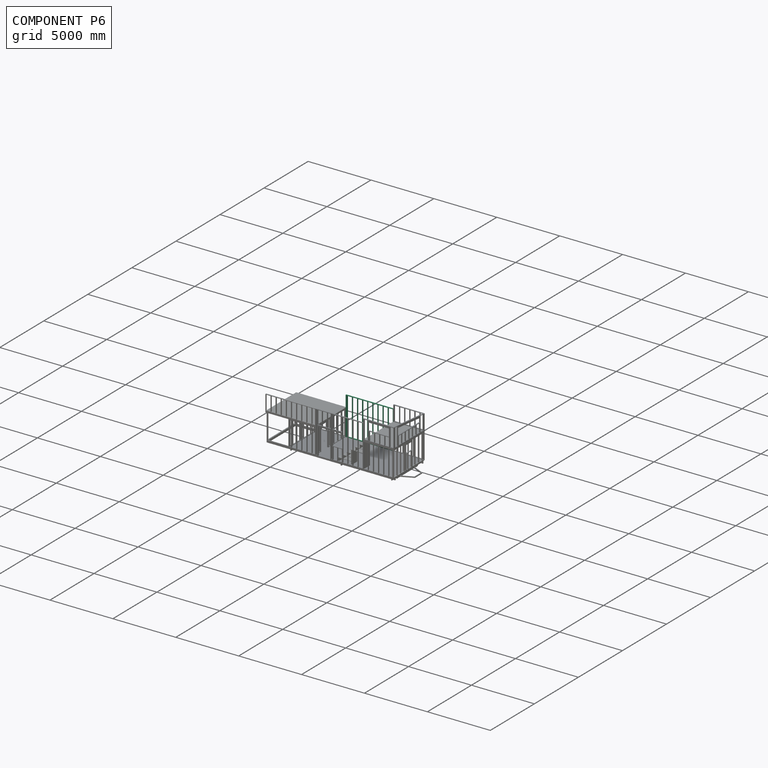
[diagram: component P6 — assembled]
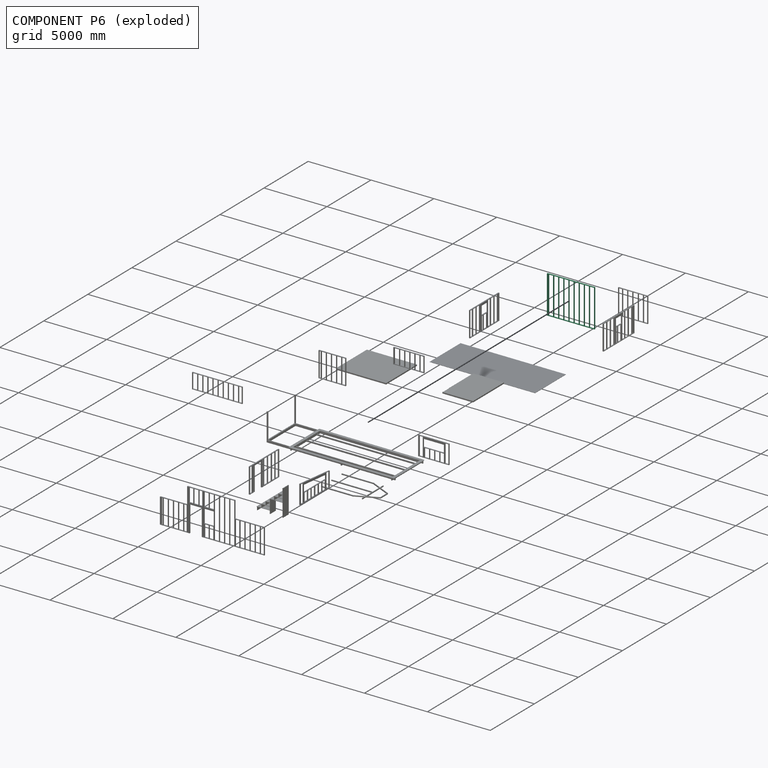
[diagram: component P6 — exploded]
COMPONENT P6 — recipe-attached (CADFS 00191176, mesh-verified: the recipe's output STEP matches this component's geometry to below the mesh-comparison resolution (tessellation chordal tolerance ~7.27 mm)).
Held by: FASTENED mate "Fastened 16" to P0.
Construction recipe (FeatureScript — the CAD program that rebuilds this solid; sketch coordinates are in the units given by the * unit suffixes, e.g. mm):

FeatureScript 2066;
import(path : "onshape/std/geometry.fs", version : "2066.0");
import(path : "onshape/std/common.fs", version : "2066.0");
const mm = millimeter;
const VERTEX = EntityType.VERTEX;
const EDGE = EntityType.EDGE;
const FACE = EntityType.FACE;
const BODY = EntityType.BODY;
function v(x, y){return vector(x, y);}
function OD(order){return orderDisambiguation(order);}
function OSD(set){return originalSetDisambiguation(set);}
function TD(topology){return topologyDisambiguation(topology);}
function TDD(query){return trueDependencyDisambiguation(query);}
function sQuery(a, b, c) {return sketchEntityQuery(a, b, c);}

annotation { "Feature Type Name" : "Feature", "Feature Type Description" : "" }
export const myFeature = defineFeature(function(context is Context, id is Id, definition is map)
    precondition{}
    {
        {
            var Q0;
            Q0=qCreatedBy(makeId("Top.planeOp"),FACE);
            var sketch = newSketch(context, id + "F0", { "sketchPlane" : qUnion([Q0])});
            skLineSegment(sketch, "E0.bottom", {"start": v(1892.3, -44.45) * mm, "end": v(-1892.3, -44.45) * mm});
            skLineSegment(sketch, "E0.top", {"start": v(1892.3, 44.45) * mm, "end": v(-1892.3, 44.45) * mm});
            skLineSegment(sketch, "E0.left", {"start": v(1892.3, -44.45) * mm, "end": v(1892.3, 44.45) * mm});
            skLineSegment(sketch, "E0.right", {"start": v(-1892.3, -44.45) * mm, "end": v(-1892.3, 44.45) * mm});
            skPoint(sketch, "E0.middle", {"position": v(0, 0) * mm});
            skSolve(sketch);
        }
        {
            var Q0;
            Q0 = qSketchRegion(id + "F0", true);
            extrude(context, id + "F1", {"entities" : qUnion([Q0]), "depth" : 38.1 * mm});
        }
        {
            var Q0;
            Q0=makeQuery(id+"F1.opExtrude","CAP_FACE",FACE,{"disambiguationData":[OSD([sQuery(id+"F0.wireOp",EDGE,"E0.bottom"),sQuery(id+"F0.wireOp",EDGE,"E0.top"),sQuery(id+"F0.wireOp",EDGE,"E0.left"),sQuery(id+"F0.wireOp",EDGE,"E0.right")])],"isStart":false});
            var sketch = newSketch(context, id + "F2", { "sketchPlane" : qUnion([Q0])});
            skLineSegment(sketch, "E1.bottom", {"start": v(1892.3, 44.45) * mm, "end": v(1854.2, 44.45) * mm});
            skLineSegment(sketch, "E1.top", {"start": v(1892.3, -44.45) * mm, "end": v(1854.2, -44.45) * mm});
            skLineSegment(sketch, "E1.left", {"start": v(1892.3, 44.45) * mm, "end": v(1892.3, -44.45) * mm});
            skLineSegment(sketch, "E1.right", {"start": v(1854.2, 44.45) * mm, "end": v(1854.2, -44.45) * mm});
            skLineSegment(sketch, "E2.bottom", {"start": v(1485.9, 44.45) * mm, "end": v(1447.8, 44.45) * mm});
            skLineSegment(sketch, "E2.top", {"start": v(1485.9, -44.45) * mm, "end": v(1447.8, -44.45) * mm});
            skLineSegment(sketch, "E2.left", {"start": v(1485.9, 44.45) * mm, "end": v(1485.9, -44.45) * mm});
            skLineSegment(sketch, "E2.right", {"start": v(1447.8, 44.45) * mm, "end": v(1447.8, -44.45) * mm});
            skLineSegment(sketch, "E3.bottom", {"start": v(-1892.3, 44.45) * mm, "end": v(-1854.2, 44.45) * mm});
            skLineSegment(sketch, "E3.top", {"start": v(-1892.3, -44.45) * mm, "end": v(-1854.2, -44.45) * mm});
            skLineSegment(sketch, "E3.left", {"start": v(-1892.3, 44.45) * mm, "end": v(-1892.3, -44.45) * mm});
            skLineSegment(sketch, "E3.right", {"start": v(-1854.2, 44.45) * mm, "end": v(-1854.2, -44.45) * mm});
            skLineSegment(sketch, "E4.bottom", {"start": v(-1397, 44.45) * mm, "end": v(-1358.9, 44.45) * mm});
            skLineSegment(sketch, "E4.top", {"start": v(-1397, -44.45) * mm, "end": v(-1358.9, -44.45) * mm});
            skLineSegment(sketch, "E4.left", {"start": v(-1397, 44.45) * mm, "end": v(-1397, -44.45) * mm});
            skLineSegment(sketch, "E4.right", {"start": v(-1358.9, 44.45) * mm, "end": v(-1358.9, -44.45) * mm});
            skLineSegment(sketch, "E5.bottom", {"start": v(-990.6, 44.45) * mm, "end": v(-952.5, 44.45) * mm});
            skLineSegment(sketch, "E5.top", {"start": v(-990.6, -44.45) * mm, "end": v(-952.5, -44.45) * mm});
            skLineSegment(sketch, "E5.left", {"start": v(-990.6, 44.45) * mm, "end": v(-990.6, -44.45) * mm});
            skLineSegment(sketch, "E5.right", {"start": v(-952.5, 44.45) * mm, "end": v(-952.5, -44.45) * mm});
            skLineSegment(sketch, "E6.bottom", {"start": v(-584.2, 44.45) * mm, "end": v(-546.1, 44.45) * mm});
            skLineSegment(sketch, "E6.top", {"start": v(-584.2, -44.45) * mm, "end": v(-546.1, -44.45) * mm});
            skLineSegment(sketch, "E6.left", {"start": v(-584.2, 44.45) * mm, "end": v(-584.2, -44.45) * mm});
            skLineSegment(sketch, "E6.right", {"start": v(-546.1, 44.45) * mm, "end": v(-546.1, -44.45) * mm});
            skLineSegment(sketch, "E7.bottom", {"start": v(-177.8, 44.45) * mm, "end": v(-139.7, 44.45) * mm});
            skLineSegment(sketch, "E7.top", {"start": v(-177.8, -44.45) * mm, "end": v(-139.7, -44.45) * mm});
            skLineSegment(sketch, "E7.left", {"start": v(-177.8, 44.45) * mm, "end": v(-177.8, -44.45) * mm});
            skLineSegment(sketch, "E7.right", {"start": v(-139.7, 44.45) * mm, "end": v(-139.7, -44.45) * mm});
            skLineSegment(sketch, "E8.bottom", {"start": v(228.6, 44.45) * mm, "end": v(266.7, 44.45) * mm});
            skLineSegment(sketch, "E8.top", {"start": v(228.6, -44.45) * mm, "end": v(266.7, -44.45) * mm});
            skLineSegment(sketch, "E8.left", {"start": v(228.6, 44.45) * mm, "end": v(228.6, -44.45) * mm});
            skLineSegment(sketch, "E8.right", {"start": v(266.7, 44.45) * mm, "end": v(266.7, -44.45) * mm});
            skLineSegment(sketch, "E9.bottom", {"start": v(635, 44.45) * mm, "end": v(673.1, 44.45) * mm});
            skLineSegment(sketch, "E9.top", {"start": v(635, -44.45) * mm, "end": v(673.1, -44.45) * mm});
            skLineSegment(sketch, "E9.left", {"start": v(635, 44.45) * mm, "end": v(635, -44.45) * mm});
            skLineSegment(sketch, "E9.right", {"start": v(673.1, 44.45) * mm, "end": v(673.1, -44.45) * mm});
            skLineSegment(sketch, "E10.bottom", {"start": v(1041.4, 44.45) * mm, "end": v(1079.5, 44.45) * mm});
            skLineSegment(sketch, "E10.top", {"start": v(1041.4, -44.45) * mm, "end": v(1079.5, -44.45) * mm});
            skLineSegment(sketch, "E10.left", {"start": v(1041.4, 44.45) * mm, "end": v(1041.4, -44.45) * mm});
            skLineSegment(sketch, "E10.right", {"start": v(1079.5, 44.45) * mm, "end": v(1079.5, -44.45) * mm});
            skLineSegment(sketch, "E11.bottom", {"start": v(-1803.4, 44.45) * mm, "end": v(-1765.3, 44.45) * mm});
            skLineSegment(sketch, "E11.top", {"start": v(-1803.4, -44.45) * mm, "end": v(-1765.3, -44.45) * mm});
            skLineSegment(sketch, "E11.left", {"start": v(-1803.4, 44.45) * mm, "end": v(-1803.4, -44.45) * mm});
            skLineSegment(sketch, "E11.right", {"start": v(-1765.3, 44.45) * mm, "end": v(-1765.3, -44.45) * mm});
            skSolve(sketch);
        }
        {
            var Q0;
            Q0 = qSketchRegion(id + "F2", true);
            extrude(context, id + "F3", {"entities" : qUnion([Q0]), "operationType" : NewBodyOperationType.ADD, "depth" : 2946.4 * mm});
        }
        {
            var Q0;
            Q0=makeQuery(id+"F3.boolean.opBoolean","MERGE",FACE,{"derivedFrom":[makeQuery(id+"F1.opExtrude","SWEPT_FACE",FACE,{"disambiguationData":[OSD([sQuery(id+"F0.wireOp",EDGE,"E0.bottom")])]}),makeQuery(id+"F3.opExtrude","SWEPT_FACE",FACE,{"disambiguationData":[OSD([sQuery(id+"F2.wireOp",EDGE,"E1.top")])]}),makeQuery(id+"F3.opExtrude","SWEPT_FACE",FACE,{"disambiguationData":[OSD([sQuery(id+"F2.wireOp",EDGE,"E2.top")])]}),makeQuery(id+"F3.opExtrude","SWEPT_FACE",FACE,{"disambiguationData":[OSD([sQuery(id+"F2.wireOp",EDGE,"E3.top")])]}),makeQuery(id+"F3.opExtrude","SWEPT_FACE",FACE,{"disambiguationData":[OSD([sQuery(id+"F2.wireOp",EDGE,"E4.top")])]}),makeQuery(id+"F3.opExtrude","SWEPT_FACE",FACE,{"disambiguationData":[OSD([sQuery(id+"F2.wireOp",EDGE,"E5.top")])]}),makeQuery(id+"F3.opExtrude","SWEPT_FACE",FACE,{"disambiguationData":[OSD([sQuery(id+"F2.wireOp",EDGE,"E6.top")])]}),makeQuery(id+"F3.opExtrude","SWEPT_FACE",FACE,{"disambiguationData":[OSD([sQuery(id+"F2.wireOp",EDGE,"E7.top")])]}),makeQuery(id+"F3.opExtrude","SWEPT_FACE",FACE,{"disambiguationData":[OSD([sQuery(id+"F2.wireOp",EDGE,"E8.top")])]}),makeQuery(id+"F3.opExtrude","SWEPT_FACE",FACE,{"disambiguationData":[OSD([sQuery(id+"F2.wireOp",EDGE,"E9.top")])]}),makeQuery(id+"F3.opExtrude","SWEPT_FACE",FACE,{"disambiguationData":[OSD([sQuery(id+"F2.wireOp",EDGE,"E10.top")])]}),makeQuery(id+"F3.opExtrude","SWEPT_FACE",FACE,{"disambiguationData":[OSD([sQuery(id+"F2.wireOp",EDGE,"E11.top")])]})]});
            var sketch = newSketch(context, id + "F4", { "sketchPlane" : qUnion([Q0])});
            skLineSegment(sketch, "E12.bottom", {"start": v(1892.3, 2984.5) * mm, "end": v(-1892.3, 2984.5) * mm});
            skLineSegment(sketch, "E12.top", {"start": v(1892.3, 3022.6) * mm, "end": v(-1892.3, 3022.6) * mm});
            skLineSegment(sketch, "E12.left", {"start": v(1892.3, 2984.5) * mm, "end": v(1892.3, 3022.6) * mm});
            skLineSegment(sketch, "E12.right", {"start": v(-1892.3, 2984.5) * mm, "end": v(-1892.3, 3022.6) * mm});
            skSolve(sketch);
        }
        {
            var Q0;
            Q0 = qSketchRegion(id + "F4", true);
            extrude(context, id + "F5", {"entities" : qUnion([Q0]), "operationType" : NewBodyOperationType.ADD, "oppositeDirection" : true, "depth" : 88.9 * mm});
        }
    });
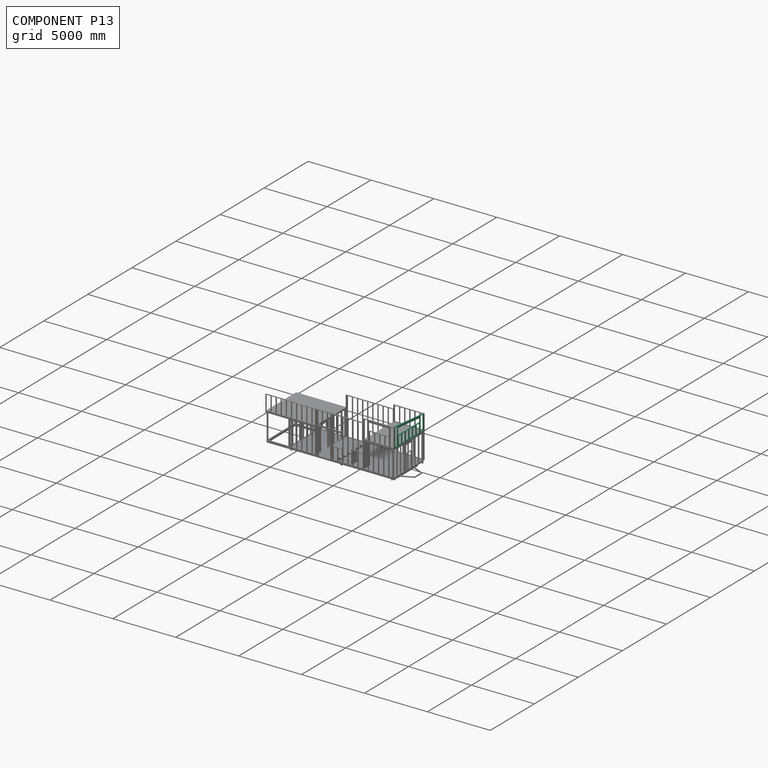
[diagram: component P13 — assembled]
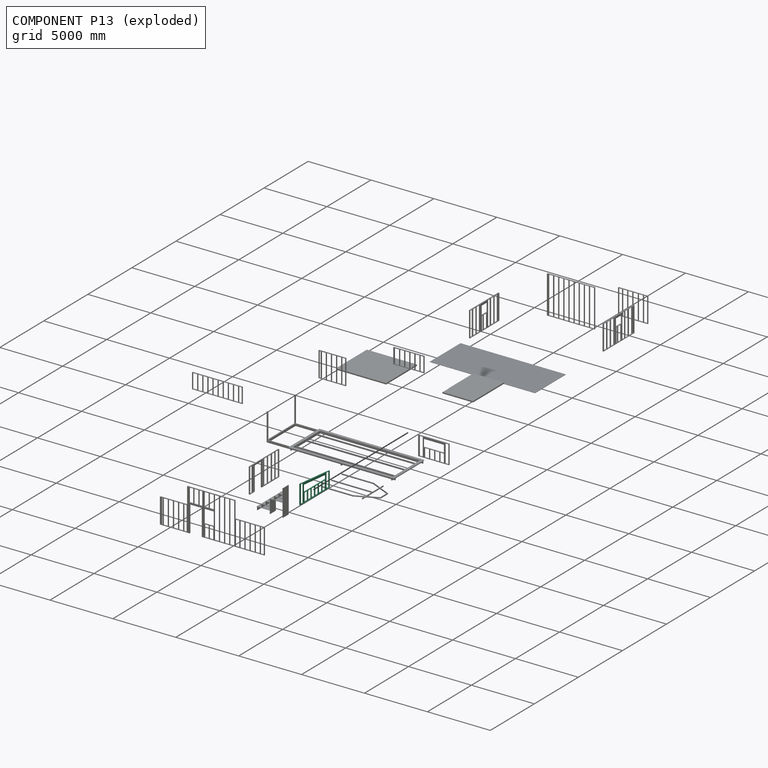
[diagram: component P13 — exploded]
COMPONENT P13 — recipe-attached (CADFS 00191171, mesh-verified: the recipe's output STEP matches this component's geometry to below the mesh-comparison resolution (tessellation chordal tolerance ~5.49 mm)).
Held by: FASTENED mate "Fastened 11" to P4.
Construction recipe (FeatureScript — the CAD program that rebuilds this solid; sketch coordinates are in the units given by the * unit suffixes, e.g. mm):

FeatureScript 2066;
import(path : "onshape/std/geometry.fs", version : "2066.0");
import(path : "onshape/std/common.fs", version : "2066.0");
const mm = millimeter;
const VERTEX = EntityType.VERTEX;
const EDGE = EntityType.EDGE;
const FACE = EntityType.FACE;
const BODY = EntityType.BODY;
function v(x, y){return vector(x, y);}
function OD(order){return orderDisambiguation(order);}
function OSD(set){return originalSetDisambiguation(set);}
function TD(topology){return topologyDisambiguation(topology);}
function TDD(query){return trueDependencyDisambiguation(query);}
function sQuery(a, b, c) {return sketchEntityQuery(a, b, c);}

annotation { "Feature Type Name" : "Feature", "Feature Type Description" : "" }
export const myFeature = defineFeature(function(context is Context, id is Id, definition is map)
    precondition{}
    {
        {
            var Q0;
            Q0=qCreatedBy(makeId("Top.planeOp"),FACE);
            var sketch = newSketch(context, id + "F0", { "sketchPlane" : qUnion([Q0])});
            skLineSegment(sketch, "E0.bottom", {"start": v(1663.7, -44.45) * mm, "end": v(-1663.7, -44.45) * mm});
            skLineSegment(sketch, "E0.top", {"start": v(1663.7, 44.45) * mm, "end": v(-1663.7, 44.45) * mm});
            skLineSegment(sketch, "E0.left", {"start": v(1663.7, -44.45) * mm, "end": v(1663.7, 44.45) * mm});
            skLineSegment(sketch, "E0.right", {"start": v(-1663.7, -44.45) * mm, "end": v(-1663.7, 44.45) * mm});
            skPoint(sketch, "E0.middle", {"position": v(0, 0) * mm});
            skSolve(sketch);
        }
        {
            var Q0;
            Q0 = qSketchRegion(id + "F0", true);
            extrude(context, id + "F1", {"entities" : qUnion([Q0]), "depth" : 38.1 * mm});
        }
        {
            var Q0;
            Q0=makeQuery(id+"F1.opExtrude","CAP_FACE",FACE,{"disambiguationData":[OSD([sQuery(id+"F0.wireOp",EDGE,"E0.bottom"),sQuery(id+"F0.wireOp",EDGE,"E0.top"),sQuery(id+"F0.wireOp",EDGE,"E0.left"),sQuery(id+"F0.wireOp",EDGE,"E0.right")])],"isStart":false});
            var sketch = newSketch(context, id + "F2", { "sketchPlane" : qUnion([Q0])});
            skLineSegment(sketch, "E1.bottom", {"start": v(1663.7, 44.45) * mm, "end": v(1625.6, 44.45) * mm});
            skLineSegment(sketch, "E1.top", {"start": v(1663.7, -44.45) * mm, "end": v(1625.6, -44.45) * mm});
            skLineSegment(sketch, "E1.left", {"start": v(1663.7, 44.45) * mm, "end": v(1663.7, -44.45) * mm});
            skLineSegment(sketch, "E1.right", {"start": v(1625.6, 44.45) * mm, "end": v(1625.6, -44.45) * mm});
            skLineSegment(sketch, "E2.bottom", {"start": v(1257.3, 44.45) * mm, "end": v(1219.2, 44.45) * mm});
            skLineSegment(sketch, "E2.top", {"start": v(1257.3, -44.45) * mm, "end": v(1219.2, -44.45) * mm});
            skLineSegment(sketch, "E2.left", {"start": v(1257.3, 44.45) * mm, "end": v(1257.3, -44.45) * mm});
            skLineSegment(sketch, "E2.right", {"start": v(1219.2, 44.45) * mm, "end": v(1219.2, -44.45) * mm});
            skLineSegment(sketch, "E3.bottom", {"start": v(850.9, 44.45) * mm, "end": v(812.8, 44.45) * mm});
            skLineSegment(sketch, "E3.top", {"start": v(850.9, -44.45) * mm, "end": v(812.8, -44.45) * mm});
            skLineSegment(sketch, "E3.left", {"start": v(850.9, 44.45) * mm, "end": v(850.9, -44.45) * mm});
            skLineSegment(sketch, "E3.right", {"start": v(812.8, 44.45) * mm, "end": v(812.8, -44.45) * mm});
            skLineSegment(sketch, "E4.bottom", {"start": v(444.5, 44.45) * mm, "end": v(406.4, 44.45) * mm});
            skLineSegment(sketch, "E4.top", {"start": v(444.5, -44.45) * mm, "end": v(406.4, -44.45) * mm});
            skLineSegment(sketch, "E4.left", {"start": v(444.5, 44.45) * mm, "end": v(444.5, -44.45) * mm});
            skLineSegment(sketch, "E4.right", {"start": v(406.4, 44.45) * mm, "end": v(406.4, -44.45) * mm});
            skLineSegment(sketch, "E5.bottom", {"start": v(38.1, 44.45) * mm, "end": v(0, 44.45) * mm});
            skLineSegment(sketch, "E5.top", {"start": v(38.1, -44.45) * mm, "end": v(0, -44.45) * mm});
            skLineSegment(sketch, "E5.left", {"start": v(38.1, 44.45) * mm, "end": v(38.1, -44.45) * mm});
            skLineSegment(sketch, "E5.right", {"start": v(0, 44.45) * mm, "end": v(0, -44.45) * mm});
            skLineSegment(sketch, "E6.bottom", {"start": v(-368.3, 44.45) * mm, "end": v(-406.4, 44.45) * mm});
            skLineSegment(sketch, "E6.top", {"start": v(-368.3, -44.45) * mm, "end": v(-406.4, -44.45) * mm});
            skLineSegment(sketch, "E6.left", {"start": v(-368.3, 44.45) * mm, "end": v(-368.3, -44.45) * mm});
            skLineSegment(sketch, "E6.right", {"start": v(-406.4, 44.45) * mm, "end": v(-406.4, -44.45) * mm});
            skLineSegment(sketch, "E7.bottom", {"start": v(-774.7, 44.45) * mm, "end": v(-812.8, 44.45) * mm});
            skLineSegment(sketch, "E7.top", {"start": v(-774.7, -44.45) * mm, "end": v(-812.8, -44.45) * mm});
            skLineSegment(sketch, "E7.left", {"start": v(-774.7, 44.45) * mm, "end": v(-774.7, -44.45) * mm});
            skLineSegment(sketch, "E7.right", {"start": v(-812.8, 44.45) * mm, "end": v(-812.8, -44.45) * mm});
            skLineSegment(sketch, "E8.bottom", {"start": v(-1181.1, 44.45) * mm, "end": v(-1219.2, 44.45) * mm});
            skLineSegment(sketch, "E8.top", {"start": v(-1181.1, -44.45) * mm, "end": v(-1219.2, -44.45) * mm});
            skLineSegment(sketch, "E8.left", {"start": v(-1181.1, 44.45) * mm, "end": v(-1181.1, -44.45) * mm});
            skLineSegment(sketch, "E8.right", {"start": v(-1219.2, 44.45) * mm, "end": v(-1219.2, -44.45) * mm});
            skLineSegment(sketch, "E9.bottom", {"start": v(-1663.7, 44.45) * mm, "end": v(-1625.6, 44.45) * mm});
            skLineSegment(sketch, "E9.top", {"start": v(-1663.7, -44.45) * mm, "end": v(-1625.6, -44.45) * mm});
            skLineSegment(sketch, "E9.left", {"start": v(-1663.7, 44.45) * mm, "end": v(-1663.7, -44.45) * mm});
            skLineSegment(sketch, "E9.right", {"start": v(-1625.6, 44.45) * mm, "end": v(-1625.6, -44.45) * mm});
            skLineSegment(sketch, "E10.bottom", {"start": v(-1625.6, 44.45) * mm, "end": v(-1587.5, 44.45) * mm});
            skLineSegment(sketch, "E10.top", {"start": v(-1625.6, -44.45) * mm, "end": v(-1587.5, -44.45) * mm});
            skLineSegment(sketch, "E10.right", {"start": v(-1587.5, 44.45) * mm, "end": v(-1587.5, -44.45) * mm});
            skSolve(sketch);
        }
        {
            var Q0;
            Q0 = qSketchRegion(id + "F2", true);
            extrude(context, id + "F3", {"entities" : qUnion([Q0]), "operationType" : NewBodyOperationType.ADD, "depth" : 1524 * mm});
        }
        {
            var Q0;
            Q0=makeQuery(id+"F3.boolean.opBoolean","MERGE",FACE,{"derivedFrom":[makeQuery(id+"F1.opExtrude","SWEPT_FACE",FACE,{"disambiguationData":[OSD([sQuery(id+"F0.wireOp",EDGE,"E0.bottom")])]}),makeQuery(id+"F3.opExtrude","SWEPT_FACE",FACE,{"disambiguationData":[OSD([sQuery(id+"F2.wireOp",EDGE,"E1.top")])]}),makeQuery(id+"F3.opExtrude","SWEPT_FACE",FACE,{"disambiguationData":[OSD([sQuery(id+"F2.wireOp",EDGE,"E2.top")])]}),makeQuery(id+"F3.opExtrude","SWEPT_FACE",FACE,{"disambiguationData":[OSD([sQuery(id+"F2.wireOp",EDGE,"E3.top")])]}),makeQuery(id+"F3.opExtrude","SWEPT_FACE",FACE,{"disambiguationData":[OSD([sQuery(id+"F2.wireOp",EDGE,"E4.top")])]}),makeQuery(id+"F3.opExtrude","SWEPT_FACE",FACE,{"disambiguationData":[OSD([sQuery(id+"F2.wireOp",EDGE,"E5.top")])]}),makeQuery(id+"F3.opExtrude","SWEPT_FACE",FACE,{"disambiguationData":[OSD([sQuery(id+"F2.wireOp",EDGE,"E6.top")])]}),makeQuery(id+"F3.opExtrude","SWEPT_FACE",FACE,{"disambiguationData":[OSD([sQuery(id+"F2.wireOp",EDGE,"E7.top")])]}),makeQuery(id+"F3.opExtrude","SWEPT_FACE",FACE,{"disambiguationData":[OSD([sQuery(id+"F2.wireOp",EDGE,"E8.top")])]}),makeQuery(id+"F3.opExtrude","SWEPT_FACE",FACE,{"disambiguationData":[OSD([sQuery(id+"F2.wireOp",EDGE,"E9.top"),sQuery(id+"F2.wireOp",EDGE,"E10.top")])]})]});
            var sketch = newSketch(context, id + "F4", { "sketchPlane" : qUnion([Q0])});
            skLineSegment(sketch, "E11", {"start": v(-1663.7, 1485.9) * mm, "end": v(1663.7, 1181.1) * mm});
            skLineSegment(sketch, "E12", {"start": v(1663.7, 1181.1) * mm, "end": v(1733.68, 1945) * mm});
            skLineSegment(sketch, "E13", {"start": v(1733.68, 1945) * mm, "end": v(-1823.17, 1997.78) * mm});
            skLineSegment(sketch, "E14", {"start": v(-1823.17, 1997.78) * mm, "end": v(-1663.7, 1485.9) * mm});
            skSolve(sketch);
        }
        {
            var Q0;
            Q0 = qSketchRegion(id + "F4", true);
            extrude(context, id + "F5", {"entities" : qUnion([Q0]), "operationType" : NewBodyOperationType.REMOVE, "oppositeDirection" : true, "depth" : 431.8 * mm});
        }
        {
            var Q0;
            Q0=makeQuery(id+"F3.boolean.opBoolean","MERGE",FACE,{"derivedFrom":[makeQuery(id+"F1.opExtrude","SWEPT_FACE",FACE,{"disambiguationData":[OSD([sQuery(id+"F0.wireOp",EDGE,"E0.bottom")])]}),makeQuery(id+"F3.opExtrude","SWEPT_FACE",FACE,{"disambiguationData":[OSD([sQuery(id+"F2.wireOp",EDGE,"E1.top")])]}),makeQuery(id+"F3.opExtrude","SWEPT_FACE",FACE,{"disambiguationData":[OSD([sQuery(id+"F2.wireOp",EDGE,"E2.top")])]}),makeQuery(id+"F3.opExtrude","SWEPT_FACE",FACE,{"disambiguationData":[OSD([sQuery(id+"F2.wireOp",EDGE,"E3.top")])]}),makeQuery(id+"F3.opExtrude","SWEPT_FACE",FACE,{"disambiguationData":[OSD([sQuery(id+"F2.wireOp",EDGE,"E4.top")])]}),makeQuery(id+"F3.opExtrude","SWEPT_FACE",FACE,{"disambiguationData":[OSD([sQuery(id+"F2.wireOp",EDGE,"E5.top")])]}),makeQuery(id+"F3.opExtrude","SWEPT_FACE",FACE,{"disambiguationData":[OSD([sQuery(id+"F2.wireOp",EDGE,"E6.top")])]}),makeQuery(id+"F3.opExtrude","SWEPT_FACE",FACE,{"disambiguationData":[OSD([sQuery(id+"F2.wireOp",EDGE,"E7.top")])]}),makeQuery(id+"F3.opExtrude","SWEPT_FACE",FACE,{"disambiguationData":[OSD([sQuery(id+"F2.wireOp",EDGE,"E8.top")])]}),makeQuery(id+"F3.opExtrude","SWEPT_FACE",FACE,{"disambiguationData":[OSD([sQuery(id+"F2.wireOp",EDGE,"E9.top"),sQuery(id+"F2.wireOp",EDGE,"E10.top")])]})]});
            var sketch = newSketch(context, id + "F6", { "sketchPlane" : qUnion([Q0])});
            skLineSegment(sketch, "E15", {"start": v(-1663.7, 1485.9) * mm, "end": v(1663.7, 1181.1) * mm});
            skLineSegment(sketch, "E16", {"start": v(1663.7, 1181.1) * mm, "end": v(1663.7, 1219.2) * mm});
            skLineSegment(sketch, "E17", {"start": v(1663.7, 1219.2) * mm, "end": v(-1663.7, 1524) * mm});
            skLineSegment(sketch, "E18", {"start": v(-1663.7, 1524) * mm, "end": v(-1663.7, 1485.9) * mm});
            skSolve(sketch);
        }
        {
            var Q0;
            Q0 = qSketchRegion(id + "F6", true);
            extrude(context, id + "F7", {"entities" : qUnion([Q0]), "operationType" : NewBodyOperationType.ADD, "oppositeDirection" : true, "depth" : 88.9 * mm});
        }
        {
            var Q0;
            Q0=makeQuery(id+"F7.boolean.opBoolean","MERGE",FACE,{"derivedFrom":[makeQuery(id+"F3.boolean.opBoolean","MERGE",FACE,{"derivedFrom":[makeQuery(id+"F1.opExtrude","SWEPT_FACE",FACE,{"disambiguationData":[OSD([sQuery(id+"F0.wireOp",EDGE,"E0.bottom")])]}),makeQuery(id+"F3.opExtrude","SWEPT_FACE",FACE,{"disambiguationData":[OSD([sQuery(id+"F2.wireOp",EDGE,"E1.top")])]}),makeQuery(id+"F3.opExtrude","SWEPT_FACE",FACE,{"disambiguationData":[OSD([sQuery(id+"F2.wireOp",EDGE,"E2.top")])]}),makeQuery(id+"F3.opExtrude","SWEPT_FACE",FACE,{"disambiguationData":[OSD([sQuery(id+"F2.wireOp",EDGE,"E3.top")])]}),makeQuery(id+"F3.opExtrude","SWEPT_FACE",FACE,{"disambiguationData":[OSD([sQuery(id+"F2.wireOp",EDGE,"E4.top")])]}),makeQuery(id+"F3.opExtrude","SWEPT_FACE",FACE,{"disambiguationData":[OSD([sQuery(id+"F2.wireOp",EDGE,"E5.top")])]}),makeQuery(id+"F3.opExtrude","SWEPT_FACE",FACE,{"disambiguationData":[OSD([sQuery(id+"F2.wireOp",EDGE,"E6.top")])]}),makeQuery(id+"F3.opExtrude","SWEPT_FACE",FACE,{"disambiguationData":[OSD([sQuery(id+"F2.wireOp",EDGE,"E7.top")])]}),makeQuery(id+"F3.opExtrude","SWEPT_FACE",FACE,{"disambiguationData":[OSD([sQuery(id+"F2.wireOp",EDGE,"E8.top")])]}),makeQuery(id+"F3.opExtrude","SWEPT_FACE",FACE,{"disambiguationData":[OSD([sQuery(id+"F2.wireOp",EDGE,"E9.top"),sQuery(id+"F2.wireOp",EDGE,"E10.top")])]})]}),makeQuery(id+"F7.opExtrude","CAP_FACE",FACE,{"disambiguationData":[OSD([sQuery(id+"F6.wireOp",EDGE,"E15"),sQuery(id+"F6.wireOp",EDGE,"E16"),sQuery(id+"F6.wireOp",EDGE,"E17"),sQuery(id+"F6.wireOp",EDGE,"E18")])],"isStart":true})]});
            var sketch = newSketch(context, id + "F8", { "sketchPlane" : qUnion([Q0])});
            skLineSegment(sketch, "E19", {"start": v(-1257.3, 762) * mm, "end": v(1257.3, 762) * mm});
            skLineSegment(sketch, "E20", {"start": v(1257.3, 762) * mm, "end": v(1257.3, 1090.8) * mm});
            skLineSegment(sketch, "E21", {"start": v(1257.3, 1090.8) * mm, "end": v(-1257.3, 1321.14) * mm});
            skLineSegment(sketch, "E22", {"start": v(-1257.3, 1321.14) * mm, "end": v(-1257.3, 762) * mm});
            skLineSegment(sketch, "E23.bottom", {"start": v(-1257.3, 38.1) * mm, "end": v(-1295.4, 38.1) * mm});
            skLineSegment(sketch, "E23.top", {"start": v(-1257.3, 1452.16) * mm, "end": v(-1295.4, 1452.16) * mm});
            skLineSegment(sketch, "E23.left", {"start": v(-1257.3, 38.1) * mm, "end": v(-1257.3, 1452.16) * mm});
            skLineSegment(sketch, "E23.right", {"start": v(-1295.4, 38.1) * mm, "end": v(-1295.4, 1452.16) * mm});
            skLineSegment(sketch, "E24.bottom", {"start": v(1257.3, 1218.33) * mm, "end": v(1295.4, 1218.33) * mm});
            skLineSegment(sketch, "E24.top", {"start": v(1257.3, 38.1) * mm, "end": v(1295.4, 38.1) * mm});
            skLineSegment(sketch, "E24.left", {"start": v(1257.3, 1218.33) * mm, "end": v(1257.3, 38.1) * mm});
            skLineSegment(sketch, "E24.right", {"start": v(1295.4, 1218.33) * mm, "end": v(1295.4, 38.1) * mm});
            skLineSegment(sketch, "E25.top", {"start": v(-1257.3, 723.9) * mm, "end": v(1257.3, 723.9) * mm});
            skLineSegment(sketch, "E25.left", {"start": v(-1257.3, 762) * mm, "end": v(-1257.3, 723.9) * mm});
            skLineSegment(sketch, "E25.right", {"start": v(1257.3, 762) * mm, "end": v(1257.3, 723.9) * mm});
            skLineSegment(sketch, "E26", {"start": v(1257.3, 1218.33) * mm, "end": v(-1257.3, 1452.16) * mm});
            skLineSegment(sketch, "E27", {"start": v(-1257.3, 1321.14) * mm, "end": v(1257.3, 1090.8) * mm});
            skSolve(sketch);
        }
        {
            var Q0;
            Q0 = qSketchRegion(id + "F8", true);
            extrude(context, id + "F9", {"entities" : qUnion([Q0]), "operationType" : NewBodyOperationType.ADD, "oppositeDirection" : true, "depth" : 88.9 * mm});
        }
        {
            var Q0;
            Q0=makeQuery(id+"F9.boolean.opBoolean","MERGE",FACE,{"derivedFrom":[makeQuery(id+"F7.boolean.opBoolean","MERGE",FACE,{"derivedFrom":[makeQuery(id+"F3.boolean.opBoolean","MERGE",FACE,{"derivedFrom":[makeQuery(id+"F1.opExtrude","SWEPT_FACE",FACE,{"disambiguationData":[OSD([sQuery(id+"F0.wireOp",EDGE,"E0.bottom")])]}),makeQuery(id+"F3.opExtrude","SWEPT_FACE",FACE,{"disambiguationData":[OSD([sQuery(id+"F2.wireOp",EDGE,"E1.top")])]}),makeQuery(id+"F3.opExtrude","SWEPT_FACE",FACE,{"disambiguationData":[OSD([sQuery(id+"F2.wireOp",EDGE,"E2.top")])]}),makeQuery(id+"F3.opExtrude","SWEPT_FACE",FACE,{"disambiguationData":[OSD([sQuery(id+"F2.wireOp",EDGE,"E3.top")])]}),makeQuery(id+"F3.opExtrude","SWEPT_FACE",FACE,{"disambiguationData":[OSD([sQuery(id+"F2.wireOp",EDGE,"E4.top")])]}),makeQuery(id+"F3.opExtrude","SWEPT_FACE",FACE,{"disambiguationData":[OSD([sQuery(id+"F2.wireOp",EDGE,"E5.top")])]}),makeQuery(id+"F3.opExtrude","SWEPT_FACE",FACE,{"disambiguationData":[OSD([sQuery(id+"F2.wireOp",EDGE,"E6.top")])]}),makeQuery(id+"F3.opExtrude","SWEPT_FACE",FACE,{"disambiguationData":[OSD([sQuery(id+"F2.wireOp",EDGE,"E7.top")])]}),makeQuery(id+"F3.opExtrude","SWEPT_FACE",FACE,{"disambiguationData":[OSD([sQuery(id+"F2.wireOp",EDGE,"E8.top")])]}),makeQuery(id+"F3.opExtrude","SWEPT_FACE",FACE,{"disambiguationData":[OSD([sQuery(id+"F2.wireOp",EDGE,"E9.top"),sQuery(id+"F2.wireOp",EDGE,"E10.top")])]})]}),makeQuery(id+"F7.opExtrude","CAP_FACE",FACE,{"disambiguationData":[OSD([sQuery(id+"F6.wireOp",EDGE,"E15"),sQuery(id+"F6.wireOp",EDGE,"E16"),sQuery(id+"F6.wireOp",EDGE,"E17"),sQuery(id+"F6.wireOp",EDGE,"E18")])],"isStart":true})]}),makeQuery(id+"F9.opExtrude","CAP_FACE",FACE,{"disambiguationData":[OSD([sQuery(id+"F8.wireOp",EDGE,"E23.bottom"),sQuery(id+"F8.wireOp",EDGE,"E23.top"),sQuery(id+"F8.wireOp",EDGE,"E23.left"),sQuery(id+"F8.wireOp",EDGE,"E23.right"),sQuery(id+"F8.wireOp",EDGE,"E24.bottom"),sQuery(id+"F8.wireOp",EDGE,"E24.top"),sQuery(id+"F8.wireOp",EDGE,"E24.left"),sQuery(id+"F8.wireOp",EDGE,"E24.right"),sQuery(id+"F8.wireOp",EDGE,"E19"),sQuery(id+"F8.wireOp",EDGE,"E25.top"),sQuery(id+"F8.wireOp",EDGE,"E26"),sQuery(id+"F8.wireOp",EDGE,"E27")])],"isStart":true})]});
            var sketch = newSketch(context, id + "F10", { "sketchPlane" : qUnion([Q0])});
            skLineSegment(sketch, "E28", {"start": v(-1257.3, 762) * mm, "end": v(1254.12, 762) * mm});
            skLineSegment(sketch, "E29", {"start": v(1254.12, 762) * mm, "end": v(1254.12, 1094.29) * mm});
            skLineSegment(sketch, "E30", {"start": v(-1257.3, 762) * mm, "end": v(-1257.3, 1321.14) * mm});
            skLineSegment(sketch, "E31", {"start": v(-1257.3, 1321.14) * mm, "end": v(1254.12, 1091.09) * mm});
            skSolve(sketch);
        }
        {
            var Q0;
            Q0 = qSketchRegion(id + "F10", true);
            extrude(context, id + "F11", {"entities" : qUnion([Q0]), "operationType" : NewBodyOperationType.REMOVE, "oppositeDirection" : true, "depth" : 330.2 * mm});
        }
    });
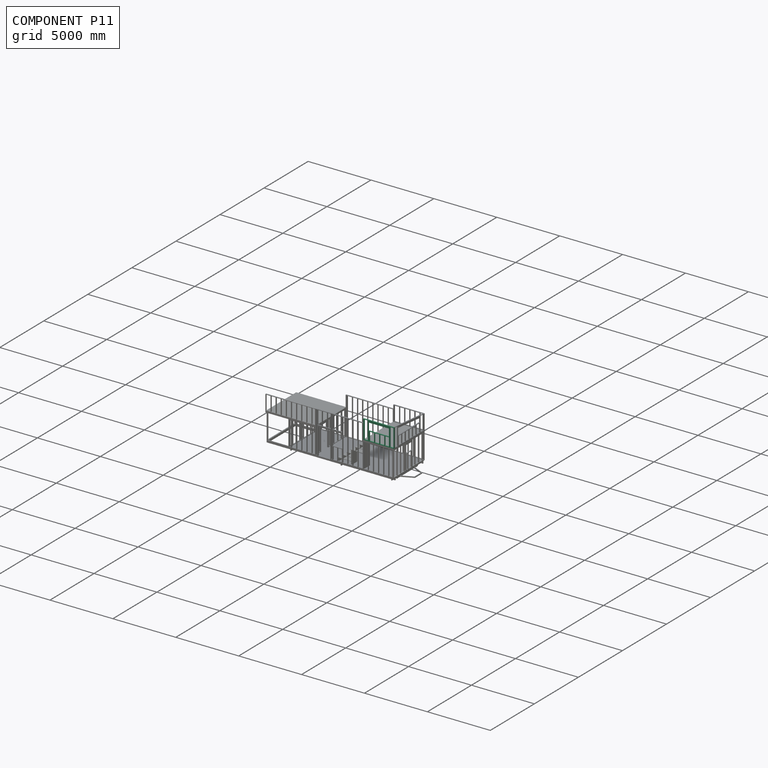
[diagram: component P11 — assembled]
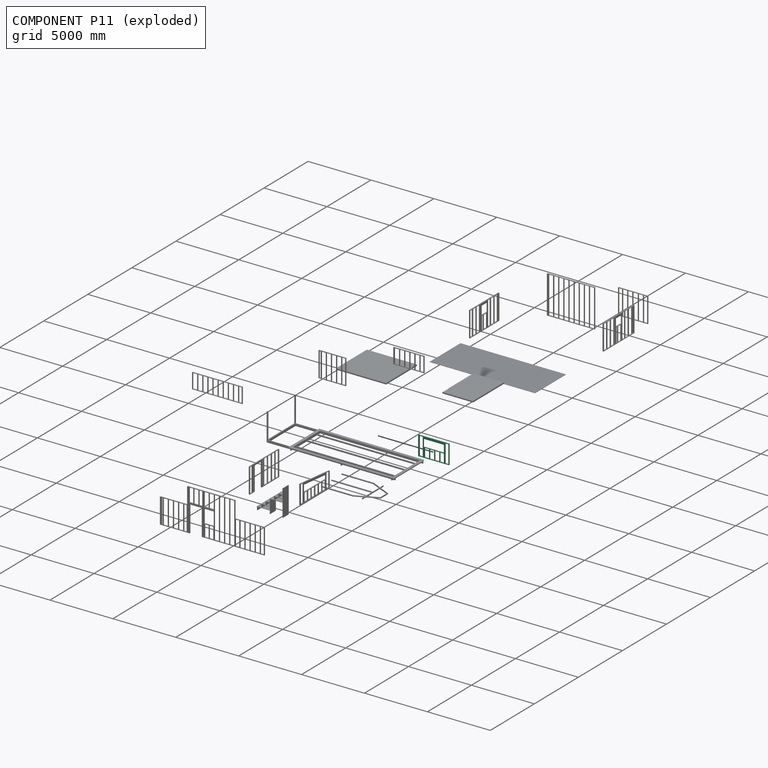
[diagram: component P11 — exploded]
COMPONENT P11 — recipe-attached (CADFS 00191169, mesh-verified: the recipe's output STEP matches this component's geometry to below the mesh-comparison resolution (tessellation chordal tolerance ~4.32 mm)).
Held by: FASTENED mate "Fastened 7" to P4.
Construction recipe (FeatureScript — the CAD program that rebuilds this solid; sketch coordinates are in the units given by the * unit suffixes, e.g. mm):

FeatureScript 2066;
import(path : "onshape/std/geometry.fs", version : "2066.0");
import(path : "onshape/std/common.fs", version : "2066.0");
const mm = millimeter;
const VERTEX = EntityType.VERTEX;
const EDGE = EntityType.EDGE;
const FACE = EntityType.FACE;
const BODY = EntityType.BODY;
function v(x, y){return vector(x, y);}
function OD(order){return orderDisambiguation(order);}
function OSD(set){return originalSetDisambiguation(set);}
function TD(topology){return topologyDisambiguation(topology);}
function TDD(query){return trueDependencyDisambiguation(query);}
function sQuery(a, b, c) {return sketchEntityQuery(a, b, c);}

annotation { "Feature Type Name" : "Feature", "Feature Type Description" : "" }
export const myFeature = defineFeature(function(context is Context, id is Id, definition is map)
    precondition{}
    {
        {
            var Q0;
            Q0=qCreatedBy(makeId("Top.planeOp"),FACE);
            var sketch = newSketch(context, id + "F0", { "sketchPlane" : qUnion([Q0])});
            skLineSegment(sketch, "E0.bottom", {"start": v(1219.2, -44.45) * mm, "end": v(-1219.2, -44.45) * mm});
            skLineSegment(sketch, "E0.top", {"start": v(1219.2, 44.45) * mm, "end": v(-1219.2, 44.45) * mm});
            skLineSegment(sketch, "E0.left", {"start": v(1219.2, -44.45) * mm, "end": v(1219.2, 44.45) * mm});
            skLineSegment(sketch, "E0.right", {"start": v(-1219.2, -44.45) * mm, "end": v(-1219.2, 44.45) * mm});
            skPoint(sketch, "E0.middle", {"position": v(0, 0) * mm});
            skSolve(sketch);
        }
        {
            var Q0;
            Q0 = qSketchRegion(id + "F0", true);
            extrude(context, id + "F1", {"entities" : qUnion([Q0]), "depth" : 38.1 * mm});
        }
        {
            var Q0;
            Q0=makeQuery(id+"F1.opExtrude","CAP_FACE",FACE,{"disambiguationData":[OSD([sQuery(id+"F0.wireOp",EDGE,"E0.bottom"),sQuery(id+"F0.wireOp",EDGE,"E0.top"),sQuery(id+"F0.wireOp",EDGE,"E0.left"),sQuery(id+"F0.wireOp",EDGE,"E0.right")])],"isStart":false});
            var sketch = newSketch(context, id + "F2", { "sketchPlane" : qUnion([Q0])});
            skLineSegment(sketch, "E1.bottom", {"start": v(1219.2, 44.45) * mm, "end": v(1181.1, 44.45) * mm});
            skLineSegment(sketch, "E1.top", {"start": v(1219.2, -44.45) * mm, "end": v(1181.1, -44.45) * mm});
            skLineSegment(sketch, "E1.left", {"start": v(1219.2, 44.45) * mm, "end": v(1219.2, -44.45) * mm});
            skLineSegment(sketch, "E1.right", {"start": v(1181.1, 44.45) * mm, "end": v(1181.1, -44.45) * mm});
            skLineSegment(sketch, "E2.bottom", {"start": v(901.7, 44.45) * mm, "end": v(863.6, 44.45) * mm});
            skLineSegment(sketch, "E2.top", {"start": v(901.7, -44.45) * mm, "end": v(863.6, -44.45) * mm});
            skLineSegment(sketch, "E2.left", {"start": v(901.7, 44.45) * mm, "end": v(901.7, -44.45) * mm});
            skLineSegment(sketch, "E2.right", {"start": v(863.6, 44.45) * mm, "end": v(863.6, -44.45) * mm});
            skLineSegment(sketch, "E3.bottom", {"start": v(495.3, 44.45) * mm, "end": v(457.2, 44.45) * mm});
            skLineSegment(sketch, "E3.top", {"start": v(495.3, -44.45) * mm, "end": v(457.2, -44.45) * mm});
            skLineSegment(sketch, "E3.left", {"start": v(495.3, 44.45) * mm, "end": v(495.3, -44.45) * mm});
            skLineSegment(sketch, "E3.right", {"start": v(457.2, 44.45) * mm, "end": v(457.2, -44.45) * mm});
            skLineSegment(sketch, "E4.bottom", {"start": v(88.9, 44.45) * mm, "end": v(50.8, 44.45) * mm});
            skLineSegment(sketch, "E4.top", {"start": v(88.9, -44.45) * mm, "end": v(50.8, -44.45) * mm});
            skLineSegment(sketch, "E4.left", {"start": v(88.9, 44.45) * mm, "end": v(88.9, -44.45) * mm});
            skLineSegment(sketch, "E4.right", {"start": v(50.8, 44.45) * mm, "end": v(50.8, -44.45) * mm});
            skLineSegment(sketch, "E5.bottom", {"start": v(-317.5, 44.45) * mm, "end": v(-355.6, 44.45) * mm});
            skLineSegment(sketch, "E5.top", {"start": v(-317.5, -44.45) * mm, "end": v(-355.6, -44.45) * mm});
            skLineSegment(sketch, "E5.left", {"start": v(-317.5, 44.45) * mm, "end": v(-317.5, -44.45) * mm});
            skLineSegment(sketch, "E5.right", {"start": v(-355.6, 44.45) * mm, "end": v(-355.6, -44.45) * mm});
            skLineSegment(sketch, "E6.bottom", {"start": v(-723.9, 44.45) * mm, "end": v(-762, 44.45) * mm});
            skLineSegment(sketch, "E6.top", {"start": v(-723.9, -44.45) * mm, "end": v(-762, -44.45) * mm});
            skLineSegment(sketch, "E6.left", {"start": v(-723.9, 44.45) * mm, "end": v(-723.9, -44.45) * mm});
            skLineSegment(sketch, "E6.right", {"start": v(-762, 44.45) * mm, "end": v(-762, -44.45) * mm});
            skLineSegment(sketch, "E7.bottom", {"start": v(-1219.2, -44.45) * mm, "end": v(-1181.1, -44.45) * mm});
            skLineSegment(sketch, "E7.top", {"start": v(-1219.2, 44.45) * mm, "end": v(-1181.1, 44.45) * mm});
            skLineSegment(sketch, "E7.left", {"start": v(-1219.2, -44.45) * mm, "end": v(-1219.2, 44.45) * mm});
            skLineSegment(sketch, "E7.right", {"start": v(-1181.1, -44.45) * mm, "end": v(-1181.1, 44.45) * mm});
            skLineSegment(sketch, "E8.bottom", {"start": v(-1181.1, -44.45) * mm, "end": v(-1143, -44.45) * mm});
            skLineSegment(sketch, "E8.top", {"start": v(-1181.1, 44.45) * mm, "end": v(-1143, 44.45) * mm});
            skLineSegment(sketch, "E8.right", {"start": v(-1143, -44.45) * mm, "end": v(-1143, 44.45) * mm});
            skSolve(sketch);
        }
        {
            var Q0;
            Q0 = qSketchRegion(id + "F2", true);
            extrude(context, id + "F3", {"entities" : qUnion([Q0]), "operationType" : NewBodyOperationType.ADD, "depth" : 1447.8 * mm});
        }
        {
            var Q0;
            Q0=makeQuery(id+"F3.boolean.opBoolean","MERGE",FACE,{"derivedFrom":[makeQuery(id+"F1.opExtrude","SWEPT_FACE",FACE,{"disambiguationData":[OSD([sQuery(id+"F0.wireOp",EDGE,"E0.top")])]}),makeQuery(id+"F3.opExtrude","SWEPT_FACE",FACE,{"disambiguationData":[OSD([sQuery(id+"F2.wireOp",EDGE,"E1.bottom")])]}),makeQuery(id+"F3.opExtrude","SWEPT_FACE",FACE,{"disambiguationData":[OSD([sQuery(id+"F2.wireOp",EDGE,"E2.bottom")])]}),makeQuery(id+"F3.opExtrude","SWEPT_FACE",FACE,{"disambiguationData":[OSD([sQuery(id+"F2.wireOp",EDGE,"E3.bottom")])]}),makeQuery(id+"F3.opExtrude","SWEPT_FACE",FACE,{"disambiguationData":[OSD([sQuery(id+"F2.wireOp",EDGE,"E4.bottom")])]}),makeQuery(id+"F3.opExtrude","SWEPT_FACE",FACE,{"disambiguationData":[OSD([sQuery(id+"F2.wireOp",EDGE,"E5.bottom")])]}),makeQuery(id+"F3.opExtrude","SWEPT_FACE",FACE,{"disambiguationData":[OSD([sQuery(id+"F2.wireOp",EDGE,"E6.bottom")])]}),makeQuery(id+"F3.opExtrude","SWEPT_FACE",FACE,{"disambiguationData":[OSD([sQuery(id+"F2.wireOp",EDGE,"E7.top"),sQuery(id+"F2.wireOp",EDGE,"E8.top")])]})]});
            var sketch = newSketch(context, id + "F4", { "sketchPlane" : qUnion([Q0])});
            skLineSegment(sketch, "E9.bottom", {"start": v(1219.2, 1485.9) * mm, "end": v(-1219.2, 1485.9) * mm});
            skLineSegment(sketch, "E9.top", {"start": v(1219.2, 1524) * mm, "end": v(-1219.2, 1524) * mm});
            skLineSegment(sketch, "E9.left", {"start": v(1219.2, 1485.9) * mm, "end": v(1219.2, 1524) * mm});
            skLineSegment(sketch, "E9.right", {"start": v(-1219.2, 1485.9) * mm, "end": v(-1219.2, 1524) * mm});
            skSolve(sketch);
        }
        {
            var Q0;
            Q0 = qSketchRegion(id + "F4", true);
            extrude(context, id + "F5", {"entities" : qUnion([Q0]), "operationType" : NewBodyOperationType.ADD, "oppositeDirection" : true, "depth" : 88.9 * mm});
        }
        {
            var Q0;
            Q0=makeQuery(id+"F5.boolean.opBoolean","MERGE",FACE,{"derivedFrom":[makeQuery(id+"F3.boolean.opBoolean","MERGE",FACE,{"derivedFrom":[makeQuery(id+"F1.opExtrude","SWEPT_FACE",FACE,{"disambiguationData":[OSD([sQuery(id+"F0.wireOp",EDGE,"E0.bottom")])]}),makeQuery(id+"F3.opExtrude","SWEPT_FACE",FACE,{"disambiguationData":[OSD([sQuery(id+"F2.wireOp",EDGE,"E1.top")])]}),makeQuery(id+"F3.opExtrude","SWEPT_FACE",FACE,{"disambiguationData":[OSD([sQuery(id+"F2.wireOp",EDGE,"E2.top")])]}),makeQuery(id+"F3.opExtrude","SWEPT_FACE",FACE,{"disambiguationData":[OSD([sQuery(id+"F2.wireOp",EDGE,"E3.top")])]}),makeQuery(id+"F3.opExtrude","SWEPT_FACE",FACE,{"disambiguationData":[OSD([sQuery(id+"F2.wireOp",EDGE,"E4.top")])]}),makeQuery(id+"F3.opExtrude","SWEPT_FACE",FACE,{"disambiguationData":[OSD([sQuery(id+"F2.wireOp",EDGE,"E5.top")])]}),makeQuery(id+"F3.opExtrude","SWEPT_FACE",FACE,{"disambiguationData":[OSD([sQuery(id+"F2.wireOp",EDGE,"E6.top")])]}),makeQuery(id+"F3.opExtrude","SWEPT_FACE",FACE,{"disambiguationData":[OSD([sQuery(id+"F2.wireOp",EDGE,"E7.bottom"),sQuery(id+"F2.wireOp",EDGE,"E8.bottom")])]})]}),makeQuery(id+"F5.opExtrude","CAP_FACE",FACE,{"disambiguationData":[OSD([sQuery(id+"F4.wireOp",EDGE,"E9.bottom"),sQuery(id+"F4.wireOp",EDGE,"E9.top"),sQuery(id+"F4.wireOp",EDGE,"E9.left"),sQuery(id+"F4.wireOp",EDGE,"E9.right")])],"isStart":false})]});
            var sketch = newSketch(context, id + "F6", { "sketchPlane" : qUnion([Q0])});
            skLineSegment(sketch, "E10.bottom", {"start": v(812.8, 762) * mm, "end": v(-812.8, 762) * mm});
            skLineSegment(sketch, "E10.top", {"start": v(812.8, 1358.9) * mm, "end": v(-812.8, 1358.9) * mm});
            skLineSegment(sketch, "E10.left", {"start": v(812.8, 762) * mm, "end": v(812.8, 1358.9) * mm});
            skLineSegment(sketch, "E10.right", {"start": v(-812.8, 762) * mm, "end": v(-812.8, 1358.9) * mm});
            skPoint(sketch, "E10.middle", {"position": v(0, 1060.45) * mm});
            skPoint(sketch, "E10.cornerSnap0", {"position": v(-317.5, 762) * mm});
            skLineSegment(sketch, "E11.bottom", {"start": v(-812.8, 1485.9) * mm, "end": v(-850.9, 1485.9) * mm});
            skLineSegment(sketch, "E11.top", {"start": v(-812.8, 38.1) * mm, "end": v(-850.9, 38.1) * mm});
            skLineSegment(sketch, "E11.left", {"start": v(-812.8, 1485.9) * mm, "end": v(-812.8, 38.1) * mm});
            skLineSegment(sketch, "E11.right", {"start": v(-850.9, 1485.9) * mm, "end": v(-850.9, 38.1) * mm});
            skLineSegment(sketch, "E12.bottom", {"start": v(863.6, 38.1) * mm, "end": v(825.5, 38.1) * mm});
            skLineSegment(sketch, "E12.top", {"start": v(863.6, 1485.9) * mm, "end": v(825.5, 1485.9) * mm});
            skLineSegment(sketch, "E12.left", {"start": v(863.6, 38.1) * mm, "end": v(863.6, 1485.9) * mm});
            skLineSegment(sketch, "E12.right", {"start": v(825.5, 38.1) * mm, "end": v(825.5, 1485.9) * mm});
            skLineSegment(sketch, "E13.bottom", {"start": v(-812.8, 762) * mm, "end": v(825.5, 762) * mm});
            skLineSegment(sketch, "E13.top", {"start": v(-812.8, 723.9) * mm, "end": v(825.5, 723.9) * mm});
            skLineSegment(sketch, "E13.left", {"start": v(-812.8, 762) * mm, "end": v(-812.8, 723.9) * mm});
            skLineSegment(sketch, "E13.right", {"start": v(825.5, 762) * mm, "end": v(825.5, 723.9) * mm});
            skLineSegment(sketch, "E14.bottom", {"start": v(-812.8, 1358.9) * mm, "end": v(825.5, 1358.9) * mm});
            skLineSegment(sketch, "E14.top", {"start": v(-812.8, 1485.9) * mm, "end": v(825.5, 1485.9) * mm});
            skLineSegment(sketch, "E14.left", {"start": v(-812.8, 1358.9) * mm, "end": v(-812.8, 1485.9) * mm});
            skLineSegment(sketch, "E14.right", {"start": v(825.5, 1358.9) * mm, "end": v(825.5, 1485.9) * mm});
            skSolve(sketch);
        }
        {
            var Q0;
            Q0 = qSketchRegion(id + "F6", true);
            extrude(context, id + "F7", {"entities" : qUnion([Q0]), "operationType" : NewBodyOperationType.ADD, "oppositeDirection" : true, "depth" : 88.9 * mm});
        }
        {
            var Q0;
            Q0=makeQuery(id+"F7.boolean.opBoolean","MERGE",FACE,{"derivedFrom":[makeQuery(id+"F5.boolean.opBoolean","MERGE",FACE,{"derivedFrom":[makeQuery(id+"F3.boolean.opBoolean","MERGE",FACE,{"derivedFrom":[makeQuery(id+"F1.opExtrude","SWEPT_FACE",FACE,{"disambiguationData":[OSD([sQuery(id+"F0.wireOp",EDGE,"E0.bottom")])]}),makeQuery(id+"F3.opExtrude","SWEPT_FACE",FACE,{"disambiguationData":[OSD([sQuery(id+"F2.wireOp",EDGE,"E1.top")])]}),makeQuery(id+"F3.opExtrude","SWEPT_FACE",FACE,{"disambiguationData":[OSD([sQuery(id+"F2.wireOp",EDGE,"E2.top")])]}),makeQuery(id+"F3.opExtrude","SWEPT_FACE",FACE,{"disambiguationData":[OSD([sQuery(id+"F2.wireOp",EDGE,"E3.top")])]}),makeQuery(id+"F3.opExtrude","SWEPT_FACE",FACE,{"disambiguationData":[OSD([sQuery(id+"F2.wireOp",EDGE,"E4.top")])]}),makeQuery(id+"F3.opExtrude","SWEPT_FACE",FACE,{"disambiguationData":[OSD([sQuery(id+"F2.wireOp",EDGE,"E5.top")])]}),makeQuery(id+"F3.opExtrude","SWEPT_FACE",FACE,{"disambiguationData":[OSD([sQuery(id+"F2.wireOp",EDGE,"E6.top")])]}),makeQuery(id+"F3.opExtrude","SWEPT_FACE",FACE,{"disambiguationData":[OSD([sQuery(id+"F2.wireOp",EDGE,"E7.bottom"),sQuery(id+"F2.wireOp",EDGE,"E8.bottom")])]})]}),makeQuery(id+"F5.opExtrude","CAP_FACE",FACE,{"disambiguationData":[OSD([sQuery(id+"F4.wireOp",EDGE,"E9.bottom"),sQuery(id+"F4.wireOp",EDGE,"E9.top"),sQuery(id+"F4.wireOp",EDGE,"E9.left"),sQuery(id+"F4.wireOp",EDGE,"E9.right")])],"isStart":false})]}),makeQuery(id+"F7.opExtrude","CAP_FACE",FACE,{"disambiguationData":[OSD([sQuery(id+"F6.wireOp",EDGE,"E11.bottom"),sQuery(id+"F6.wireOp",EDGE,"E11.top"),sQuery(id+"F6.wireOp",EDGE,"E11.left"),sQuery(id+"F6.wireOp",EDGE,"E11.right"),sQuery(id+"F6.wireOp",EDGE,"E12.bottom"),sQuery(id+"F6.wireOp",EDGE,"E12.top"),sQuery(id+"F6.wireOp",EDGE,"E12.left"),sQuery(id+"F6.wireOp",EDGE,"E12.right"),sQuery(id+"F6.wireOp",EDGE,"E13.bottom"),sQuery(id+"F6.wireOp",EDGE,"E13.top"),sQuery(id+"F6.wireOp",EDGE,"E14.bottom"),sQuery(id+"F6.wireOp",EDGE,"E14.top")])],"isStart":true})]});
            var sketch = newSketch(context, id + "F8", { "sketchPlane" : qUnion([Q0])});
            skLineSegment(sketch, "E15.bottom", {"start": v(-812.8, 1358.9) * mm, "end": v(825.5, 1358.9) * mm});
            skLineSegment(sketch, "E15.top", {"start": v(-812.8, 762) * mm, "end": v(825.5, 762) * mm});
            skLineSegment(sketch, "E15.left", {"start": v(-812.8, 1358.9) * mm, "end": v(-812.8, 762) * mm});
            skLineSegment(sketch, "E15.right", {"start": v(825.5, 1358.9) * mm, "end": v(825.5, 762) * mm});
            skSolve(sketch);
        }
        {
            var Q0;
            Q0 = qSketchRegion(id + "F8", true);
            extrude(context, id + "F9", {"entities" : qUnion([Q0]), "operationType" : NewBodyOperationType.REMOVE, "oppositeDirection" : true, "depth" : 215.9 * mm});
        }
    });
